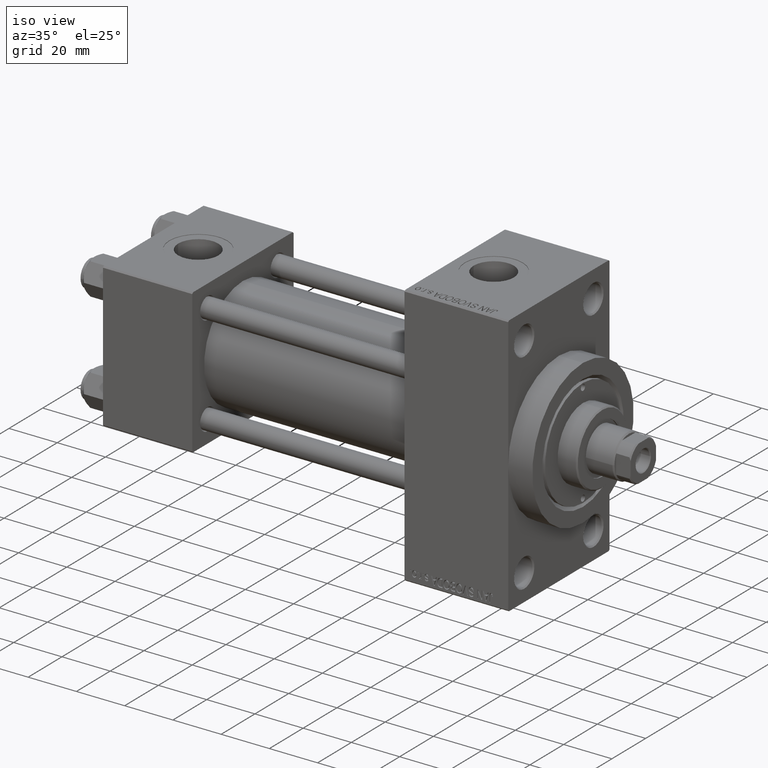
[diagram: clean part render]
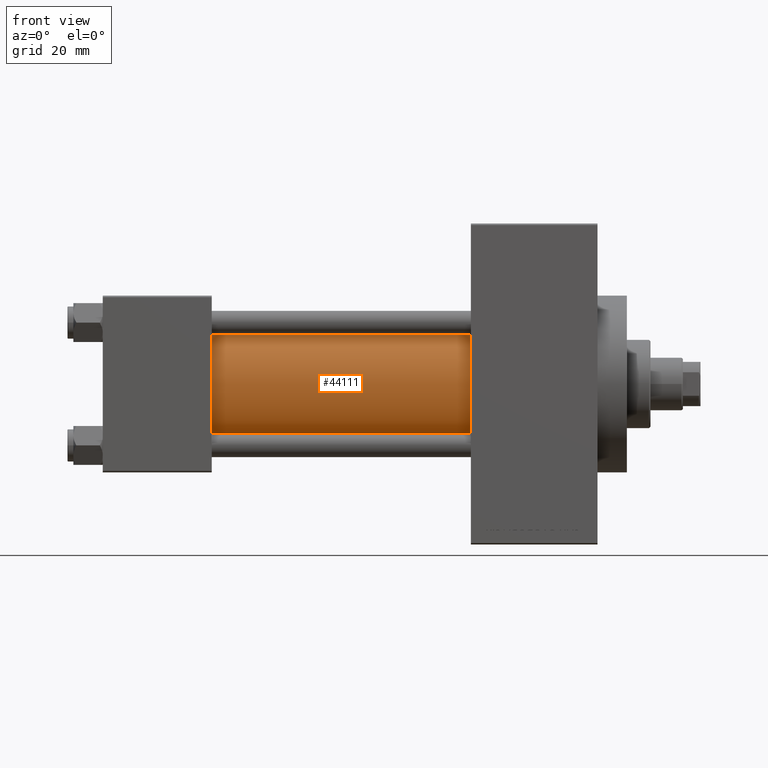
[diagram: tour spotlight — one face highlighted and labeled with its STEP entity id]
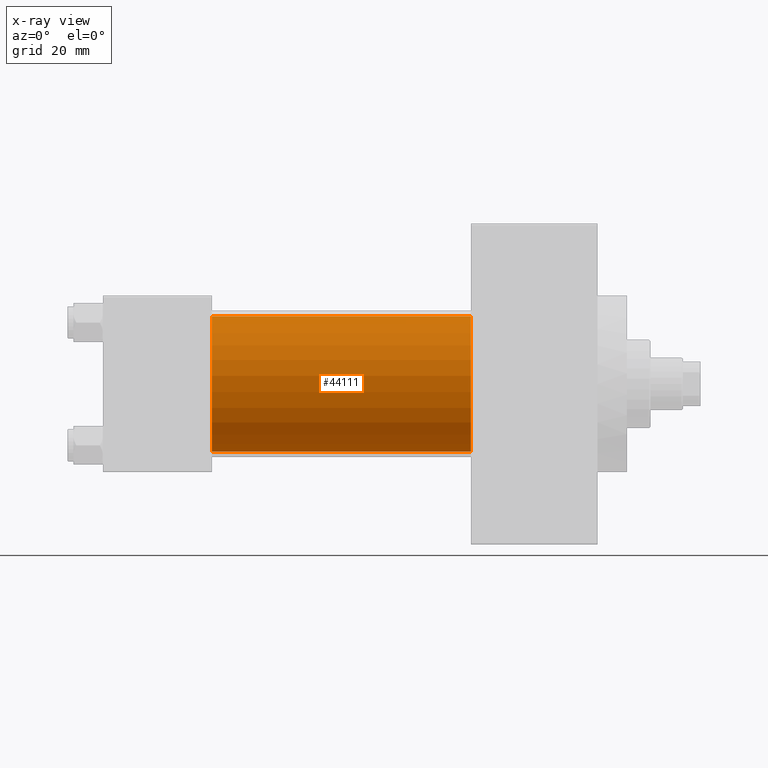
[diagram: x-ray of the same camera — body ghosted, this tour face saturated]
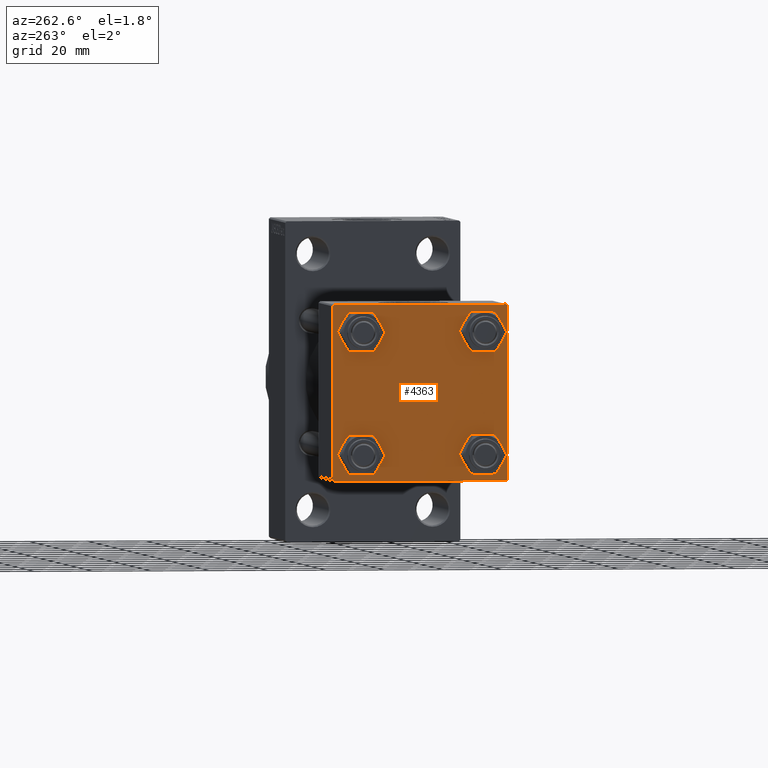
[diagram: tour spotlight — one face highlighted and labeled with its STEP entity id]
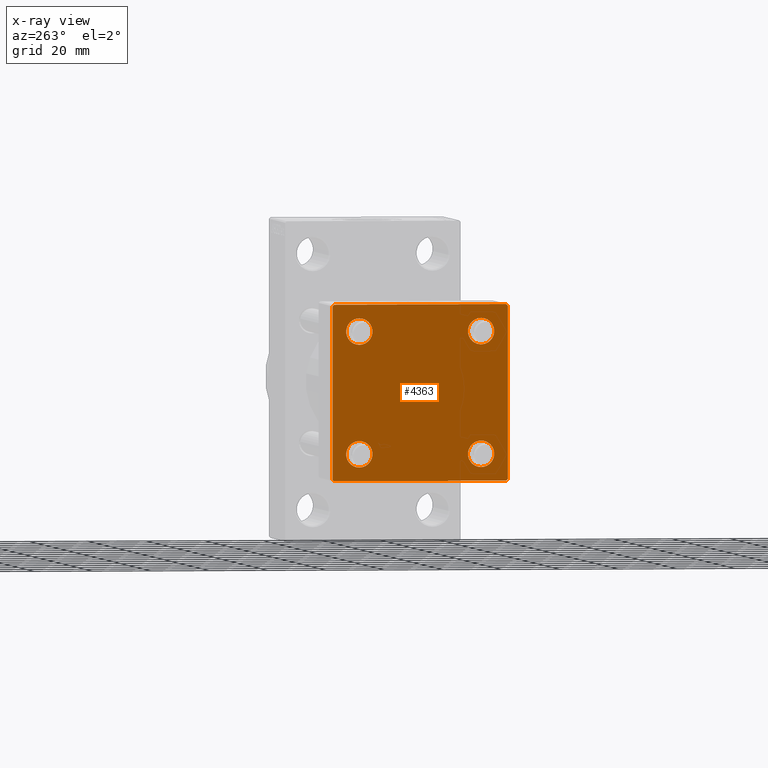
[diagram: x-ray of the same camera — body ghosted, this tour face saturated]
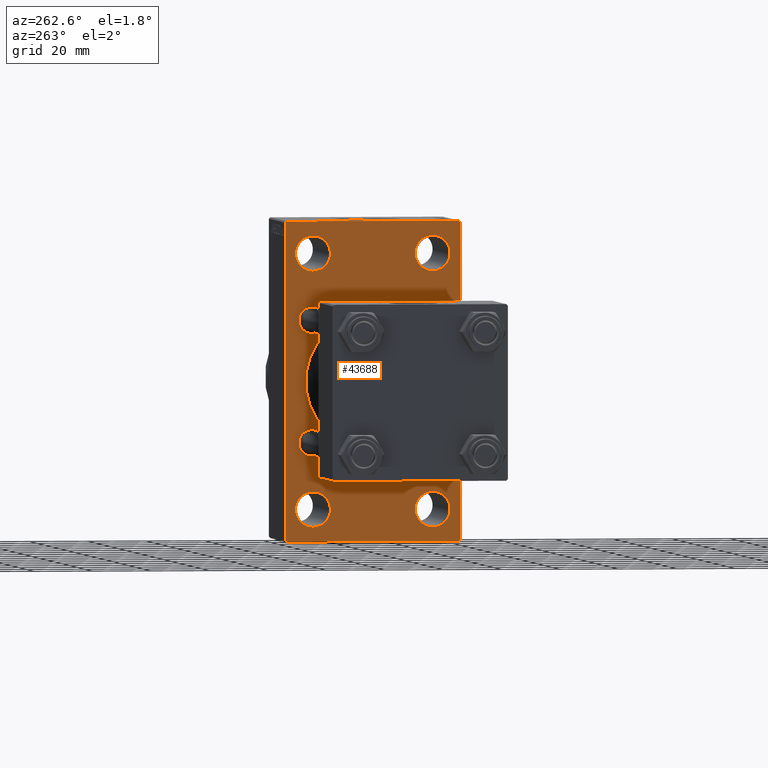
[diagram: tour spotlight — one face highlighted and labeled with its STEP entity id]
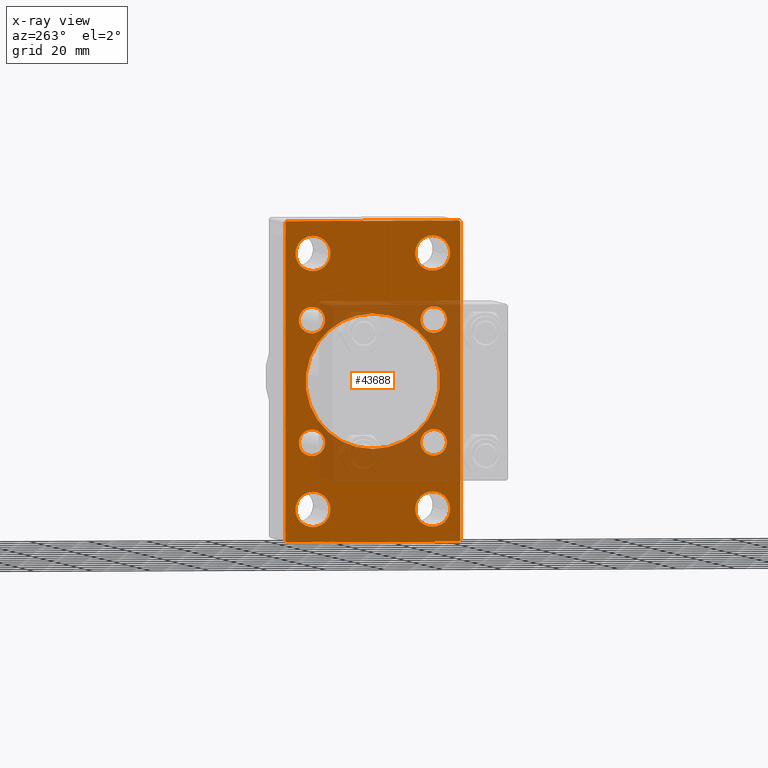
[diagram: x-ray of the same camera — body ghosted, this tour face saturated]
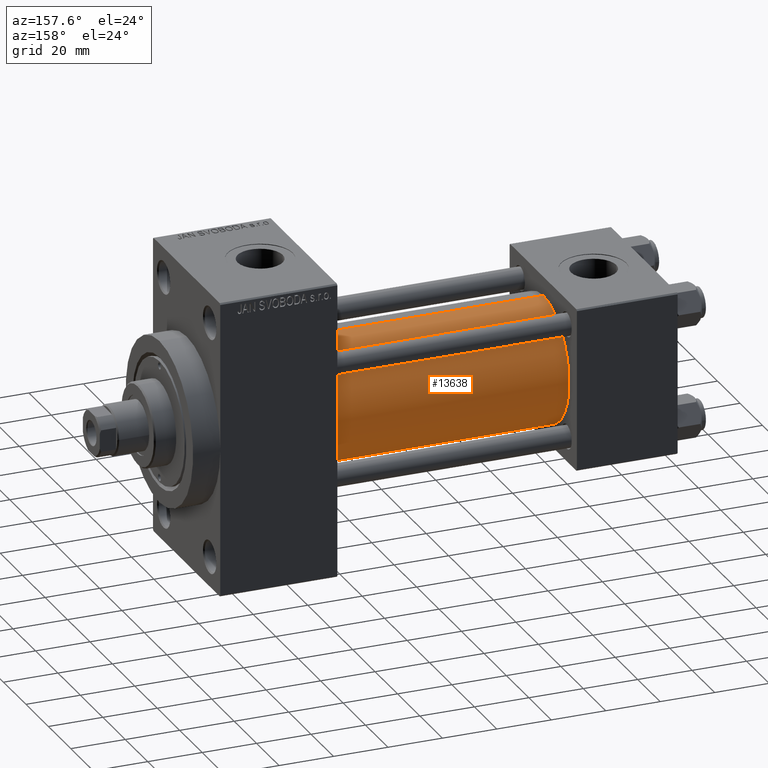
[diagram: tour spotlight — one face highlighted and labeled with its STEP entity id]
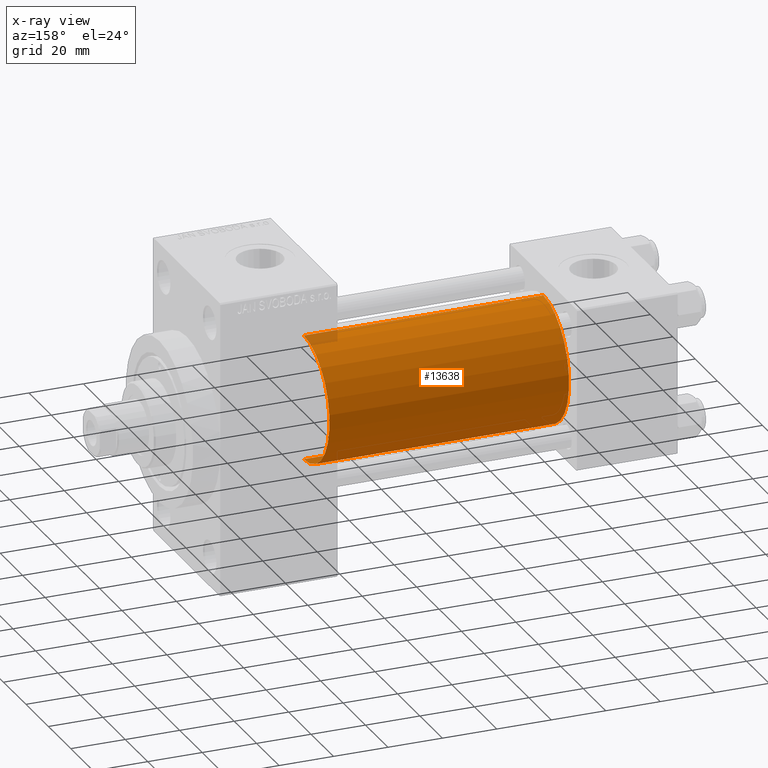
[diagram: x-ray of the same camera — body ghosted, this tour face saturated]
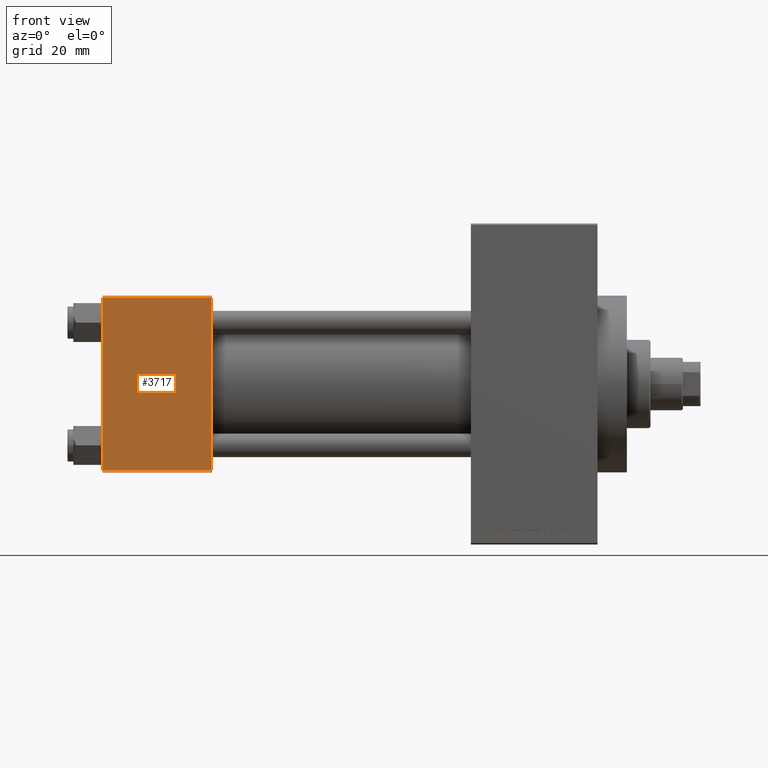
[diagram: tour spotlight — one face highlighted and labeled with its STEP entity id]
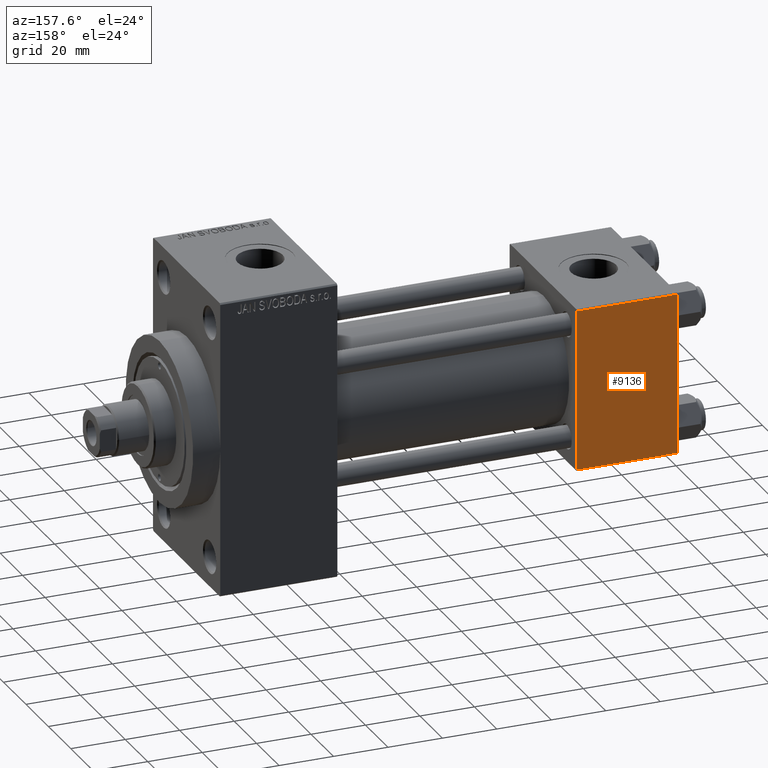
[diagram: tour spotlight — one face highlighted and labeled with its STEP entity id]
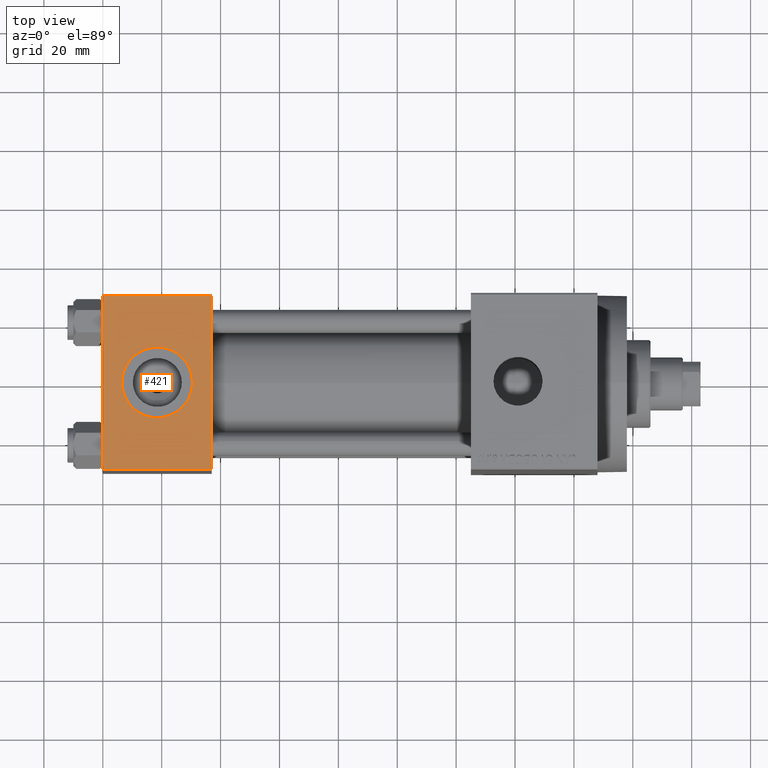
[diagram: tour spotlight — one face highlighted and labeled with its STEP entity id]
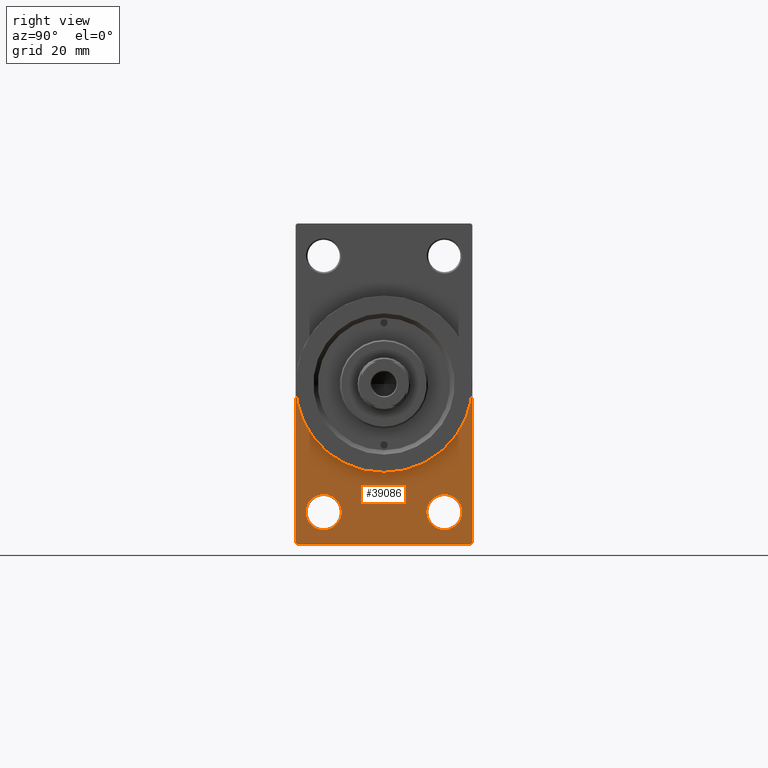
[diagram: tour spotlight — one face highlighted and labeled with its STEP entity id]
A machine part: a face-by-face anatomy tour. The part has 1112 B-rep faces; the first image is the clean iso view, then the 8 largest visible faces are spotlighted one at a time (largest first), each with its STEP entity span.

Face 1 — front view, entity #44111. An x-ray twin of the same camera follows (body ghosted, this face saturated) — the face is partly hidden behind the body. In plain terms, the highlighted cylindrical surface (partial cylindrical patch) has radius 23 mm, axis along (-1, -0, -0).
Definition (entity closure, byte-faithful):
#1170 = CARTESIAN_POINT ( 'NONE',  ( 37.00000000000000711, -2.602085213965210642E-15, 23.00000000000000000 ) ) ;
#1554 = ORIENTED_EDGE ( 'NONE', *, *, #14561, .T. ) ;
#1659 = CARTESIAN_POINT ( 'NONE',  ( 125.0000000000000000, -2.602085213965210642E-15, 0.000000000000000000 ) ) ;
#1843 = ORIENTED_EDGE ( 'NONE', *, *, #11908, .F. ) ;
#3394 = DIRECTION ( 'NONE',  ( -1.000000000000000000, -0.000000000000000000, -0.000000000000000000 ) ) ;
#3546 = AXIS2_PLACEMENT_3D ( 'NONE', #1659, #16992, #16277 ) ;
#3885 = CARTESIAN_POINT ( 'NONE',  ( 125.0000000000000000, -2.602085213965210642E-15, 23.00000000000000000 ) ) ;
#5732 = DIRECTION ( 'NONE',  ( 0.000000000000000000, 0.000000000000000000, 1.000000000000000000 ) ) ;
#7010 = FACE_OUTER_BOUND ( 'NONE', #47047, .T. ) ;
#7470 = CYLINDRICAL_SURFACE ( 'NONE', #8044, 23.00000000000000000 ) ;
#8044 = AXIS2_PLACEMENT_3D ( 'NONE', #32677, #14210, #40135 ) ;
#10346 = CARTESIAN_POINT ( 'NONE',  ( 125.0000000000000000, 2.146024240737016609E-16, -23.00000000000000000 ) ) ;
#11436 = VERTEX_POINT ( 'NONE', #15441 ) ;
#11908 = EDGE_CURVE ( 'NONE', #11436, #42377, #41092, .T. ) ;
#13854 = DIRECTION ( 'NONE',  ( 1.000000000000000000, -0.000000000000000000, 0.000000000000000000 ) ) ;
#14193 = CARTESIAN_POINT ( 'NONE',  ( 37.00000000000000711, 2.146024240737016609E-16, -23.00000000000000000 ) ) ;
#14210 = DIRECTION ( 'NONE',  ( -1.000000000000000000, -0.000000000000000000, -0.000000000000000000 ) ) ;
#14561 = EDGE_CURVE ( 'NONE', #43275, #41863, #44205, .T. ) ;
#14870 = LINE ( 'NONE', #10346, #38579 ) ;
#15441 = CARTESIAN_POINT ( 'NONE',  ( 125.0000000000000000, -2.602085213965210642E-15, 23.00000000000000000 ) ) ;
#16277 = DIRECTION ( 'NONE',  ( 0.000000000000000000, 0.000000000000000000, -1.000000000000000000 ) ) ;
#16992 = DIRECTION ( 'NONE',  ( 1.000000000000000000, 0.000000000000000000, 0.000000000000000000 ) ) ;
#18505 = DIRECTION ( 'NONE',  ( -1.000000000000000000, -0.000000000000000000, -0.000000000000000000 ) ) ;
#25330 = ORIENTED_EDGE ( 'NONE', *, *, #39605, .F. ) ;
#28031 = CARTESIAN_POINT ( 'NONE',  ( 37.00000000000000711, -2.602085213965210642E-15, 0.000000000000000000 ) ) ;
#32677 = CARTESIAN_POINT ( 'NONE',  ( 125.0000000000000000, -2.602085213965210642E-15, 0.000000000000000000 ) ) ;
#34486 = ORIENTED_EDGE ( 'NONE', *, *, #44209, .T. ) ;
#36559 = AXIS2_PLACEMENT_3D ( 'NONE', #28031, #13854, #5732 ) ;
#38579 = VECTOR ( 'NONE', #3394, 1000.000000000000000 ) ;
#39605 = EDGE_CURVE ( 'NONE', #42377, #41863, #14870, .T. ) ;
#40135 = DIRECTION ( 'NONE',  ( 0.000000000000000000, 0.000000000000000000, 1.000000000000000000 ) ) ;
#40601 = LINE ( 'NONE', #3885, #40990 ) ;
#40990 = VECTOR ( 'NONE', #18505, 1000.000000000000000 ) ;
#41092 = CIRCLE ( 'NONE', #3546, 23.00000000000000000 ) ;
#41863 = VERTEX_POINT ( 'NONE', #14193 ) ;
#42377 = VERTEX_POINT ( 'NONE', #42441 ) ;
#42441 = CARTESIAN_POINT ( 'NONE',  ( 125.0000000000000000, 2.146024240737016609E-16, -23.00000000000000000 ) ) ;
#43275 = VERTEX_POINT ( 'NONE', #1170 ) ;
#44111 = ADVANCED_FACE ( 'NONE', ( #7010 ), #7470, .T. ) ;
#44205 = CIRCLE ( 'NONE', #36559, 23.00000000000000000 ) ;
#44209 = EDGE_CURVE ( 'NONE', #11436, #43275, #40601, .T. ) ;
#47047 = EDGE_LOOP ( 'NONE', ( #25330, #1843, #34486, #1554 ) ) ;

Face 2 — auxiliary view, entity #4363. An x-ray twin of the same camera follows (body ghosted, this face saturated) — the face is partly hidden behind the body. In plain terms, the highlighted planar face has unit normal (-1, 0, 0).
Definition (entity closure, byte-faithful):
#66 = VECTOR ( 'NONE', #18318, 1000.000000000000000 ) ;
#426 = EDGE_CURVE ( 'NONE', #12379, #43851, #31641, .T. ) ;
#891 = FACE_BOUND ( 'NONE', #26825, .T. ) ;
#1550 = CARTESIAN_POINT ( 'NONE',  ( 0.000000000000000000, 20.84999999999999787, -16.34999999999998366 ) ) ;
#1989 = CARTESIAN_POINT ( 'NONE',  ( 0.000000000000000000, -30.00000000000000000, 29.49999999999999289 ) ) ;
#2442 = AXIS2_PLACEMENT_3D ( 'NONE', #22267, #36938, #44378 ) ;
#2809 = ORIENTED_EDGE ( 'NONE', *, *, #12884, .T. ) ;
#2903 = DIRECTION ( 'NONE',  ( 0.000000000000000000, 0.000000000000000000, 1.000000000000000000 ) ) ;
#3457 = CIRCLE ( 'NONE', #34907, 4.500000000000017764 ) ;
#4273 = CARTESIAN_POINT ( 'NONE',  ( 0.000000000000000000, -30.00000000000000000, -29.50000000000001776 ) ) ;
#4294 = ORIENTED_EDGE ( 'NONE', *, *, #43671, .T. ) ;
#4351 = ORIENTED_EDGE ( 'NONE', *, *, #40370, .T. ) ;
#4363 = ADVANCED_FACE ( 'NONE', ( #33756, #30633, #37606, #891, #41441 ), #41688, .T. ) ;
#4730 = CARTESIAN_POINT ( 'NONE',  ( 0.000000000000000000, -20.84999999999999076, -16.34999999999998721 ) ) ;
#5481 = DIRECTION ( 'NONE',  ( 1.000000000000000000, -0.000000000000000000, 0.000000000000000000 ) ) ;
#5856 = LINE ( 'NONE', #13270, #22525 ) ;
#5866 = CARTESIAN_POINT ( 'NONE',  ( 0.000000000000000000, -20.84999999999999076, -25.35000000000002274 ) ) ;
#6093 = VERTEX_POINT ( 'NONE', #40283 ) ;
#6120 = CARTESIAN_POINT ( 'NONE',  ( 0.000000000000000000, -29.49999999999998579, 29.99999999999999289 ) ) ;
#6510 = DIRECTION ( 'NONE',  ( 1.000000000000000000, -0.000000000000000000, 0.000000000000000000 ) ) ;
#6816 = EDGE_CURVE ( 'NONE', #19126, #27150, #30248, .T. ) ;
#7183 = VERTEX_POINT ( 'NONE', #4273 ) ;
#7248 = EDGE_LOOP ( 'NONE', ( #9634, #10619, #4351, #32402, #22454, #31161, #47279, #37866 ) ) ;
#7987 = EDGE_CURVE ( 'NONE', #8307, #7183, #5856, .T. ) ;
#8270 = LINE ( 'NONE', #19307, #25864 ) ;
#8307 = VERTEX_POINT ( 'NONE', #37960 ) ;
#8440 = CARTESIAN_POINT ( 'NONE',  ( 0.000000000000000000, 29.99999999999999289, 30.00000000000000000 ) ) ;
#8723 = VERTEX_POINT ( 'NONE', #25129 ) ;
#9027 = DIRECTION ( 'NONE',  ( -1.000000000000000000, 0.000000000000000000, -0.000000000000000000 ) ) ;
#9113 = DIRECTION ( 'NONE',  ( 1.000000000000000000, -0.000000000000000000, 0.000000000000000000 ) ) ;
#9634 = ORIENTED_EDGE ( 'NONE', *, *, #23498, .T. ) ;
#10199 = CARTESIAN_POINT ( 'NONE',  ( 0.000000000000000000, -20.84999999999999076, -20.85000000000000497 ) ) ;
#10317 = DIRECTION ( 'NONE',  ( -0.000000000000000000, 0.7071067811865474617, 0.7071067811865474617 ) ) ;
#10390 = ORIENTED_EDGE ( 'NONE', *, *, #35209, .T. ) ;
#10619 = ORIENTED_EDGE ( 'NONE', *, *, #6816, .T. ) ;
#11015 = DIRECTION ( 'NONE',  ( 0.000000000000000000, 0.000000000000000000, 1.000000000000000000 ) ) ;
#11337 = ORIENTED_EDGE ( 'NONE', *, *, #47235, .T. ) ;
#11499 = ORIENTED_EDGE ( 'NONE', *, *, #26181, .T. ) ;
#11726 = EDGE_LOOP ( 'NONE', ( #15335, #10390 ) ) ;
#12104 = DIRECTION ( 'NONE',  ( 0.000000000000000000, 0.000000000000000000, -1.000000000000000000 ) ) ;
#12178 = CARTESIAN_POINT ( 'NONE',  ( 0.000000000000000000, -20.84999999999999076, 20.85000000000000497 ) ) ;
#12379 = VERTEX_POINT ( 'NONE', #1550 ) ;
#12742 = AXIS2_PLACEMENT_3D ( 'NONE', #12178, #5481, #12903 ) ;
#12749 = CARTESIAN_POINT ( 'NONE',  ( 0.000000000000000000, 20.84999999999999787, 20.85000000000000142 ) ) ;
#12884 = EDGE_CURVE ( 'NONE', #33533, #13108, #28102, .T. ) ;
#12903 = DIRECTION ( 'NONE',  ( 0.000000000000000000, 0.000000000000000000, 1.000000000000000000 ) ) ;
#13108 = VERTEX_POINT ( 'NONE', #43495 ) ;
#13188 = DIRECTION ( 'NONE',  ( 0.000000000000000000, 0.000000000000000000, 1.000000000000000000 ) ) ;
#13270 = CARTESIAN_POINT ( 'NONE',  ( 0.000000000000000000, -29.75000000000001066, -29.75000000000001066 ) ) ;
#13273 = EDGE_LOOP ( 'NONE', ( #11337, #2809 ) ) ;
#13905 = LINE ( 'NONE', #43215, #22225 ) ;
#14170 = ORIENTED_EDGE ( 'NONE', *, *, #33019, .T. ) ;
#14258 = CARTESIAN_POINT ( 'NONE',  ( 0.000000000000000000, -30.00000000000000000, 29.99999999999999289 ) ) ;
#15335 = ORIENTED_EDGE ( 'NONE', *, *, #426, .T. ) ;
#15376 = AXIS2_PLACEMENT_3D ( 'NONE', #38894, #31438, #13188 ) ;
#16557 = CARTESIAN_POINT ( 'NONE',  ( 0.000000000000000000, -20.84999999999999076, -20.85000000000000497 ) ) ;
#17397 = DIRECTION ( 'NONE',  ( 1.000000000000000000, -0.000000000000000000, 0.000000000000000000 ) ) ;
#18212 = DIRECTION ( 'NONE',  ( 1.000000000000000000, -0.000000000000000000, 0.000000000000000000 ) ) ;
#18234 = VERTEX_POINT ( 'NONE', #18758 ) ;
#18318 = DIRECTION ( 'NONE',  ( 0.000000000000000000, 0.000000000000000000, -1.000000000000000000 ) ) ;
#18677 = DIRECTION ( 'NONE',  ( 0.000000000000000000, 0.7071067811865474617, -0.7071067811865474617 ) ) ;
#18758 = CARTESIAN_POINT ( 'NONE',  ( 0.000000000000000000, 29.99999999999999289, 29.50000000000000000 ) ) ;
#19126 = VERTEX_POINT ( 'NONE', #21732 ) ;
#19151 = LINE ( 'NONE', #22737, #22099 ) ;
#19307 = CARTESIAN_POINT ( 'NONE',  ( 0.000000000000000000, 29.99999999999999289, 30.00000000000000000 ) ) ;
#19496 = CARTESIAN_POINT ( 'NONE',  ( 0.000000000000000000, -20.84999999999999076, 16.34999999999998721 ) ) ;
#19721 = LINE ( 'NONE', #8440, #27670 ) ;
#20507 = LINE ( 'NONE', #26972, #24025 ) ;
#20915 = EDGE_CURVE ( 'NONE', #8723, #18234, #19151, .T. ) ;
#21571 = CARTESIAN_POINT ( 'NONE',  ( 0.000000000000000000, 20.84999999999999787, -20.85000000000000142 ) ) ;
#21732 = CARTESIAN_POINT ( 'NONE',  ( 0.000000000000000000, 29.99999999999999289, -29.50000000000000000 ) ) ;
#22099 = VECTOR ( 'NONE', #18677, 1000.000000000000114 ) ;
#22225 = VECTOR ( 'NONE', #10317, 1000.000000000000114 ) ;
#22267 = CARTESIAN_POINT ( 'NONE',  ( 0.000000000000000000, 20.84999999999999787, 20.85000000000000142 ) ) ;
#22342 = VERTEX_POINT ( 'NONE', #4730 ) ;
#22388 = AXIS2_PLACEMENT_3D ( 'NONE', #36017, #6510, #11015 ) ;
#22454 = ORIENTED_EDGE ( 'NONE', *, *, #29413, .F. ) ;
#22525 = VECTOR ( 'NONE', #38976, 1000.000000000000114 ) ;
#22737 = CARTESIAN_POINT ( 'NONE',  ( 0.000000000000000000, 29.74999999999999645, 29.74999999999999645 ) ) ;
#23035 = CIRCLE ( 'NONE', #15376, 4.500000000000017764 ) ;
#23078 = CIRCLE ( 'NONE', #2442, 4.500000000000017764 ) ;
#23498 = EDGE_CURVE ( 'NONE', #18234, #19126, #8270, .T. ) ;
#23656 = CARTESIAN_POINT ( 'NONE',  ( 0.000000000000000000, 0.000000000000000000, 0.000000000000000000 ) ) ;
#24024 = DIRECTION ( 'NONE',  ( 1.000000000000000000, -0.000000000000000000, 0.000000000000000000 ) ) ;
#24025 = VECTOR ( 'NONE', #39706, 1000.000000000000000 ) ;
#25129 = CARTESIAN_POINT ( 'NONE',  ( 0.000000000000000000, 29.49999999999999289, 30.00000000000000000 ) ) ;
#25864 = VECTOR ( 'NONE', #12104, 1000.000000000000000 ) ;
#26181 = EDGE_CURVE ( 'NONE', #38561, #6093, #42125, .T. ) ;
#26386 = CARTESIAN_POINT ( 'NONE',  ( 0.000000000000000000, 29.74999999999957723, -29.75000000000040501 ) ) ;
#26673 = VERTEX_POINT ( 'NONE', #6120 ) ;
#26825 = EDGE_LOOP ( 'NONE', ( #11499, #36975 ) ) ;
#26867 = CARTESIAN_POINT ( 'NONE',  ( 0.000000000000000000, 20.84999999999999787, 25.35000000000001918 ) ) ;
#26972 = CARTESIAN_POINT ( 'NONE',  ( 0.000000000000000000, 29.99999999999999289, -30.00000000000000000 ) ) ;
#27030 = CIRCLE ( 'NONE', #39341, 4.500000000000017764 ) ;
#27087 = VERTEX_POINT ( 'NONE', #1989 ) ;
#27150 = VERTEX_POINT ( 'NONE', #28356 ) ;
#27390 = DIRECTION ( 'NONE',  ( 0.000000000000000000, 0.000000000000000000, 1.000000000000000000 ) ) ;
#27670 = VECTOR ( 'NONE', #37735, 1000.000000000000000 ) ;
#28102 = CIRCLE ( 'NONE', #12742, 4.500000000000017764 ) ;
#28208 = DIRECTION ( 'NONE',  ( 0.000000000000000000, 0.000000000000000000, 1.000000000000000000 ) ) ;
#28356 = CARTESIAN_POINT ( 'NONE',  ( 0.000000000000000000, 29.49999999999997868, -30.00000000000000000 ) ) ;
#29363 = LINE ( 'NONE', #14258, #66 ) ;
#29413 = EDGE_CURVE ( 'NONE', #27087, #7183, #29363, .T. ) ;
#30147 = EDGE_CURVE ( 'NONE', #27087, #26673, #13905, .T. ) ;
#30248 = LINE ( 'NONE', #26386, #36329 ) ;
#30558 = CARTESIAN_POINT ( 'NONE',  ( 0.000000000000000000, 20.84999999999999787, -25.35000000000001918 ) ) ;
#30633 = FACE_BOUND ( 'NONE', #36902, .T. ) ;
#30708 = EDGE_CURVE ( 'NONE', #8723, #26673, #19721, .T. ) ;
#31161 = ORIENTED_EDGE ( 'NONE', *, *, #30147, .T. ) ;
#31438 = DIRECTION ( 'NONE',  ( 1.000000000000000000, -0.000000000000000000, 0.000000000000000000 ) ) ;
#31641 = CIRCLE ( 'NONE', #22388, 4.500000000000017764 ) ;
#32402 = ORIENTED_EDGE ( 'NONE', *, *, #7987, .T. ) ;
#32902 = AXIS2_PLACEMENT_3D ( 'NONE', #12749, #24024, #27390 ) ;
#33019 = EDGE_CURVE ( 'NONE', #46546, #22342, #39273, .T. ) ;
#33533 = VERTEX_POINT ( 'NONE', #19496 ) ;
#33756 = FACE_BOUND ( 'NONE', #13273, .T. ) ;
#34060 = AXIS2_PLACEMENT_3D ( 'NONE', #23656, #9027, #45277 ) ;
#34907 = AXIS2_PLACEMENT_3D ( 'NONE', #10199, #17397, #28208 ) ;
#35209 = EDGE_CURVE ( 'NONE', #43851, #12379, #27030, .T. ) ;
#35324 = EDGE_CURVE ( 'NONE', #6093, #38561, #23078, .T. ) ;
#36017 = CARTESIAN_POINT ( 'NONE',  ( 0.000000000000000000, 20.84999999999999787, -20.85000000000000142 ) ) ;
#36329 = VECTOR ( 'NONE', #44652, 999.9999999999998863 ) ;
#36902 = EDGE_LOOP ( 'NONE', ( #4294, #14170 ) ) ;
#36938 = DIRECTION ( 'NONE',  ( 1.000000000000000000, -0.000000000000000000, 0.000000000000000000 ) ) ;
#36975 = ORIENTED_EDGE ( 'NONE', *, *, #35324, .T. ) ;
#37606 = FACE_BOUND ( 'NONE', #11726, .T. ) ;
#37735 = DIRECTION ( 'NONE',  ( 0.000000000000000000, -1.000000000000000000, -1.156482317317871725E-16 ) ) ;
#37866 = ORIENTED_EDGE ( 'NONE', *, *, #20915, .T. ) ;
#37960 = CARTESIAN_POINT ( 'NONE',  ( 0.000000000000000000, -29.50000000000000000, -30.00000000000000711 ) ) ;
#38561 = VERTEX_POINT ( 'NONE', #26867 ) ;
#38894 = CARTESIAN_POINT ( 'NONE',  ( 0.000000000000000000, -20.84999999999999076, 20.85000000000000497 ) ) ;
#38976 = DIRECTION ( 'NONE',  ( 0.000000000000000000, -0.7071067811865474617, 0.7071067811865474617 ) ) ;
#39273 = CIRCLE ( 'NONE', #40003, 4.500000000000017764 ) ;
#39341 = AXIS2_PLACEMENT_3D ( 'NONE', #21571, #18212, #2903 ) ;
#39706 = DIRECTION ( 'NONE',  ( 0.000000000000000000, -1.000000000000000000, -1.156482317317871725E-16 ) ) ;
#40003 = AXIS2_PLACEMENT_3D ( 'NONE', #16557, #9113, #45850 ) ;
#40283 = CARTESIAN_POINT ( 'NONE',  ( 0.000000000000000000, 20.84999999999999787, 16.34999999999998366 ) ) ;
#40370 = EDGE_CURVE ( 'NONE', #27150, #8307, #20507, .T. ) ;
#41441 = FACE_OUTER_BOUND ( 'NONE', #7248, .T. ) ;
#41688 = PLANE ( 'NONE',  #34060 ) ;
#42125 = CIRCLE ( 'NONE', #32902, 4.500000000000017764 ) ;
#43215 = CARTESIAN_POINT ( 'NONE',  ( -0.000000000000000000, -29.74999999999999645, 29.74999999999999645 ) ) ;
#43495 = CARTESIAN_POINT ( 'NONE',  ( 0.000000000000000000, -20.84999999999999076, 25.35000000000002274 ) ) ;
#43671 = EDGE_CURVE ( 'NONE', #22342, #46546, #3457, .T. ) ;
#43851 = VERTEX_POINT ( 'NONE', #30558 ) ;
#44378 = DIRECTION ( 'NONE',  ( 0.000000000000000000, 0.000000000000000000, 1.000000000000000000 ) ) ;
#44652 = DIRECTION ( 'NONE',  ( -0.000000000000000000, -0.7071067811865574537, -0.7071067811865376918 ) ) ;
#45277 = DIRECTION ( 'NONE',  ( -0.000000000000000000, 0.000000000000000000, 1.000000000000000000 ) ) ;
#45850 = DIRECTION ( 'NONE',  ( 0.000000000000000000, 0.000000000000000000, 1.000000000000000000 ) ) ;
#46546 = VERTEX_POINT ( 'NONE', #5866 ) ;
#47235 = EDGE_CURVE ( 'NONE', #13108, #33533, #23035, .T. ) ;
#47279 = ORIENTED_EDGE ( 'NONE', *, *, #30708, .F. ) ;

Face 3 — auxiliary view, entity #43688. An x-ray twin of the same camera follows (body ghosted, this face saturated) — the face is partly hidden behind the body. In plain terms, the highlighted planar face has unit normal (-1, 0, 0).
Definition (entity closure, byte-faithful):
#150 = DIRECTION ( 'NONE',  ( 0.000000000000000000, 0.000000000000000000, -1.000000000000000000 ) ) ;
#555 = CARTESIAN_POINT ( 'NONE',  ( 125.0000000000000000, -30.00000000000000000, 54.50000000000000000 ) ) ;
#631 = CARTESIAN_POINT ( 'NONE',  ( 125.0000000000000000, -42.00000000000008527, 41.99999999999979394 ) ) ;
#965 = LINE ( 'NONE', #15583, #37639 ) ;
#1077 = CIRCLE ( 'NONE', #39401, 5.999999999999977796 ) ;
#1312 = VERTEX_POINT ( 'NONE', #9329 ) ;
#1420 = DIRECTION ( 'NONE',  ( 0.000000000000000000, 0.000000000000000000, 1.000000000000000000 ) ) ;
#1468 = CARTESIAN_POINT ( 'NONE',  ( 125.0000000000000000, 20.50000000000000000, 49.49999999999997158 ) ) ;
#1659 = CARTESIAN_POINT ( 'NONE',  ( 125.0000000000000000, -2.602085213965210642E-15, 0.000000000000000000 ) ) ;
#1801 = EDGE_LOOP ( 'NONE', ( #6730, #9656 ) ) ;
#1875 = DIRECTION ( 'NONE',  ( 1.000000000000000000, -0.000000000000000000, 0.000000000000000000 ) ) ;
#1954 = AXIS2_PLACEMENT_3D ( 'NONE', #42731, #39124, #20866 ) ;
#2313 = FACE_BOUND ( 'NONE', #17533, .T. ) ;
#2508 = EDGE_CURVE ( 'NONE', #21251, #39912, #8522, .T. ) ;
#2687 = EDGE_CURVE ( 'NONE', #34489, #13159, #44717, .T. ) ;
#3019 = FACE_BOUND ( 'NONE', #29223, .T. ) ;
#3244 = FACE_BOUND ( 'NONE', #16330, .T. ) ;
#3301 = EDGE_CURVE ( 'NONE', #20846, #40132, #1077, .T. ) ;
#3546 = AXIS2_PLACEMENT_3D ( 'NONE', #1659, #16992, #16277 ) ;
#3775 = ORIENTED_EDGE ( 'NONE', *, *, #10757, .T. ) ;
#3997 = VERTEX_POINT ( 'NONE', #40317 ) ;
#4223 = AXIS2_PLACEMENT_3D ( 'NONE', #31809, #6835, #46456 ) ;
#4614 = DIRECTION ( 'NONE',  ( 0.000000000000000000, 0.000000000000000000, -1.000000000000000000 ) ) ;
#4670 = DIRECTION ( 'NONE',  ( 1.000000000000000000, -0.000000000000000000, 0.000000000000000000 ) ) ;
#4780 = VERTEX_POINT ( 'NONE', #24739 ) ;
#4830 = ORIENTED_EDGE ( 'NONE', *, *, #29176, .T. ) ;
#5080 = CIRCLE ( 'NONE', #32647, 4.500000000000007105 ) ;
#5086 = DIRECTION ( 'NONE',  ( 1.000000000000000000, -0.000000000000000000, 0.000000000000000000 ) ) ;
#5145 = CARTESIAN_POINT ( 'NONE',  ( 125.0000000000000000, 29.99999999999999645, 54.49999999999999289 ) ) ;
#5200 = CIRCLE ( 'NONE', #21297, 5.999999999999977796 ) ;
#5622 = CARTESIAN_POINT ( 'NONE',  ( 125.0000000000000000, 20.84999999999999787, 20.85000000000000142 ) ) ;
#5876 = EDGE_CURVE ( 'NONE', #4780, #15926, #12609, .T. ) ;
#6177 = AXIS2_PLACEMENT_3D ( 'NONE', #34734, #1875, #16496 ) ;
#6238 = ORIENTED_EDGE ( 'NONE', *, *, #39716, .T. ) ;
#6265 = ORIENTED_EDGE ( 'NONE', *, *, #12448, .T. ) ;
#6628 = ORIENTED_EDGE ( 'NONE', *, *, #3301, .T. ) ;
#6697 = CIRCLE ( 'NONE', #9775, 5.999999999999977796 ) ;
#6701 = VERTEX_POINT ( 'NONE', #42619 ) ;
#6730 = ORIENTED_EDGE ( 'NONE', *, *, #11908, .T. ) ;
#6835 = DIRECTION ( 'NONE',  ( -1.000000000000000000, 0.000000000000000000, -0.000000000000000000 ) ) ;
#6981 = EDGE_CURVE ( 'NONE', #13087, #3997, #41789, .T. ) ;
#7163 = VECTOR ( 'NONE', #14263, 1000.000000000000000 ) ;
#7554 = DIRECTION ( 'NONE',  ( 0.000000000000000000, 0.000000000000000000, 1.000000000000000000 ) ) ;
#7713 = CARTESIAN_POINT ( 'NONE',  ( 125.0000000000000000, -20.84999999999999076, 20.85000000000000497 ) ) ;
#7958 = ORIENTED_EDGE ( 'NONE', *, *, #26558, .F. ) ;
#8522 = LINE ( 'NONE', #34455, #7163 ) ;
#9132 = EDGE_LOOP ( 'NONE', ( #33351, #17291 ) ) ;
#9329 = CARTESIAN_POINT ( 'NONE',  ( 125.0000000000000000, 29.49999999999999645, -54.49999999999999289 ) ) ;
#9387 = ORIENTED_EDGE ( 'NONE', *, *, #6981, .T. ) ;
#9656 = ORIENTED_EDGE ( 'NONE', *, *, #34626, .T. ) ;
#9775 = AXIS2_PLACEMENT_3D ( 'NONE', #42107, #13276, #34646 ) ;
#10352 = EDGE_CURVE ( 'NONE', #1312, #42830, #13848, .T. ) ;
#10449 = AXIS2_PLACEMENT_3D ( 'NONE', #34842, #5086, #34597 ) ;
#10676 = ORIENTED_EDGE ( 'NONE', *, *, #18194, .T. ) ;
#10751 = ORIENTED_EDGE ( 'NONE', *, *, #10352, .T. ) ;
#10757 = EDGE_CURVE ( 'NONE', #21497, #28112, #18771, .T. ) ;
#11179 = DIRECTION ( 'NONE',  ( 1.000000000000000000, -0.000000000000000000, 0.000000000000000000 ) ) ;
#11436 = VERTEX_POINT ( 'NONE', #15441 ) ;
#11535 = DIRECTION ( 'NONE',  ( 0.000000000000000000, 0.000000000000000000, 1.000000000000000000 ) ) ;
#11562 = LINE ( 'NONE', #555, #36789 ) ;
#11564 = VERTEX_POINT ( 'NONE', #13035 ) ;
#11678 = CIRCLE ( 'NONE', #12477, 23.00000000000000000 ) ;
#11908 = EDGE_CURVE ( 'NONE', #11436, #42377, #41092, .T. ) ;
#12021 = DIRECTION ( 'NONE',  ( 0.000000000000000000, 0.000000000000000000, 1.000000000000000000 ) ) ;
#12448 = EDGE_CURVE ( 'NONE', #11564, #6701, #5080, .T. ) ;
#12477 = AXIS2_PLACEMENT_3D ( 'NONE', #33727, #12777, #150 ) ;
#12564 = CARTESIAN_POINT ( 'NONE',  ( 125.0000000000000000, -20.84999999999999076, -20.85000000000000497 ) ) ;
#12609 = CIRCLE ( 'NONE', #15686, 4.500000000000007105 ) ;
#12729 = EDGE_CURVE ( 'NONE', #28112, #21497, #18112, .T. ) ;
#12777 = DIRECTION ( 'NONE',  ( 1.000000000000000000, 0.000000000000000000, 0.000000000000000000 ) ) ;
#12795 = DIRECTION ( 'NONE',  ( 1.000000000000000000, -0.000000000000000000, 0.000000000000000000 ) ) ;
#12918 = CARTESIAN_POINT ( 'NONE',  ( 125.0000000000000000, -20.84999999999999076, -20.85000000000000497 ) ) ;
#13035 = CARTESIAN_POINT ( 'NONE',  ( 125.0000000000000000, -20.84999999999999076, -16.34999999999999787 ) ) ;
#13087 = VERTEX_POINT ( 'NONE', #39894 ) ;
#13159 = VERTEX_POINT ( 'NONE', #1468 ) ;
#13276 = DIRECTION ( 'NONE',  ( 1.000000000000000000, -0.000000000000000000, 0.000000000000000000 ) ) ;
#13727 = VECTOR ( 'NONE', #30346, 1000.000000000000000 ) ;
#13848 = LINE ( 'NONE', #43159, #41019 ) ;
#14263 = DIRECTION ( 'NONE',  ( 0.000000000000000000, 0.000000000000000000, -1.000000000000000000 ) ) ;
#14972 = EDGE_CURVE ( 'NONE', #13159, #34489, #6697, .T. ) ;
#14997 = DIRECTION ( 'NONE',  ( 0.000000000000000000, 0.000000000000000000, 1.000000000000000000 ) ) ;
#15323 = VECTOR ( 'NONE', #29713, 1000.000000000000000 ) ;
#15345 = CARTESIAN_POINT ( 'NONE',  ( 125.0000000000000000, -30.00000000000000000, 53.99999999999997158 ) ) ;
#15388 = DIRECTION ( 'NONE',  ( 1.000000000000000000, -0.000000000000000000, 0.000000000000000000 ) ) ;
#15441 = CARTESIAN_POINT ( 'NONE',  ( 125.0000000000000000, -2.602085213965210642E-15, 23.00000000000000000 ) ) ;
#15558 = AXIS2_PLACEMENT_3D ( 'NONE', #43472, #26377, #30238 ) ;
#15583 = CARTESIAN_POINT ( 'NONE',  ( 125.0000000000000000, -42.00000000000051159, -41.99999999999905498 ) ) ;
#15587 = DIRECTION ( 'NONE',  ( 0.000000000000000000, 0.000000000000000000, 1.000000000000000000 ) ) ;
#15592 = EDGE_CURVE ( 'NONE', #6701, #11564, #42755, .T. ) ;
#15686 = AXIS2_PLACEMENT_3D ( 'NONE', #16064, #30712, #15587 ) ;
#15689 = VECTOR ( 'NONE', #40470, 1000.000000000000114 ) ;
#15704 = CARTESIAN_POINT ( 'NONE',  ( 125.0000000000000000, -20.50000000000000000, -43.50000000000000000 ) ) ;
#15926 = VERTEX_POINT ( 'NONE', #40647 ) ;
#15932 = LINE ( 'NONE', #41152, #22909 ) ;
#16064 = CARTESIAN_POINT ( 'NONE',  ( 125.0000000000000000, -20.84999999999999076, 20.85000000000000497 ) ) ;
#16277 = DIRECTION ( 'NONE',  ( 0.000000000000000000, 0.000000000000000000, -1.000000000000000000 ) ) ;
#16330 = EDGE_LOOP ( 'NONE', ( #16420, #32171 ) ) ;
#16420 = ORIENTED_EDGE ( 'NONE', *, *, #14972, .T. ) ;
#16496 = DIRECTION ( 'NONE',  ( 0.000000000000000000, 0.000000000000000000, 1.000000000000000000 ) ) ;
#16532 = DIRECTION ( 'NONE',  ( 1.000000000000000000, -0.000000000000000000, 0.000000000000000000 ) ) ;
#16652 = AXIS2_PLACEMENT_3D ( 'NONE', #7713, #15388, #12021 ) ;
#16700 = EDGE_LOOP ( 'NONE', ( #3775, #29978 ) ) ;
#16919 = FACE_BOUND ( 'NONE', #44452, .T. ) ;
#16992 = DIRECTION ( 'NONE',  ( 1.000000000000000000, 0.000000000000000000, 0.000000000000000000 ) ) ;
#17058 = ORIENTED_EDGE ( 'NONE', *, *, #27746, .F. ) ;
#17291 = ORIENTED_EDGE ( 'NONE', *, *, #28161, .T. ) ;
#17309 = VERTEX_POINT ( 'NONE', #23524 ) ;
#17533 = EDGE_LOOP ( 'NONE', ( #20135, #19411 ) ) ;
#17627 = FACE_OUTER_BOUND ( 'NONE', #25066, .T. ) ;
#17982 = EDGE_CURVE ( 'NONE', #17309, #18137, #40387, .T. ) ;
#18090 = CARTESIAN_POINT ( 'NONE',  ( 125.0000000000000000, 20.84999999999999787, -16.34999999999999432 ) ) ;
#18112 = CIRCLE ( 'NONE', #10449, 4.500000000000007105 ) ;
#18137 = VERTEX_POINT ( 'NONE', #35848 ) ;
#18194 = EDGE_CURVE ( 'NONE', #15926, #4780, #20490, .T. ) ;
#18257 = CARTESIAN_POINT ( 'NONE',  ( 125.0000000000000000, 20.50000000000000000, -49.49999999999997158 ) ) ;
#18609 = LINE ( 'NONE', #631, #15689 ) ;
#18771 = CIRCLE ( 'NONE', #22623, 4.500000000000007105 ) ;
#18869 = ORIENTED_EDGE ( 'NONE', *, *, #5876, .T. ) ;
#19411 = ORIENTED_EDGE ( 'NONE', *, *, #21319, .T. ) ;
#19639 = CARTESIAN_POINT ( 'NONE',  ( 125.0000000000000000, -20.50000000000000000, -43.50000000000000000 ) ) ;
#19860 = CARTESIAN_POINT ( 'NONE',  ( 125.0000000000000000, 20.50000000000000000, 37.50000000000002132 ) ) ;
#19994 = CARTESIAN_POINT ( 'NONE',  ( 125.0000000000000000, 20.50000000000000000, 43.50000000000000000 ) ) ;
#20135 = ORIENTED_EDGE ( 'NONE', *, *, #17982, .T. ) ;
#20337 = CARTESIAN_POINT ( 'NONE',  ( 125.0000000000000000, 20.84999999999999787, -25.35000000000000853 ) ) ;
#20391 = ORIENTED_EDGE ( 'NONE', *, *, #26605, .T. ) ;
#20490 = CIRCLE ( 'NONE', #16652, 4.500000000000007105 ) ;
#20846 = VERTEX_POINT ( 'NONE', #24059 ) ;
#20866 = DIRECTION ( 'NONE',  ( 0.000000000000000000, 0.000000000000000000, 1.000000000000000000 ) ) ;
#21007 = VERTEX_POINT ( 'NONE', #40772 ) ;
#21234 = FACE_BOUND ( 'NONE', #1801, .T. ) ;
#21251 = VERTEX_POINT ( 'NONE', #44544 ) ;
#21287 = DIRECTION ( 'NONE',  ( 0.000000000000000000, -1.000000000000000000, -1.156482317317871478E-16 ) ) ;
#21297 = AXIS2_PLACEMENT_3D ( 'NONE', #33242, #26736, #14997 ) ;
#21319 = EDGE_CURVE ( 'NONE', #18137, #17309, #35163, .T. ) ;
#21337 = AXIS2_PLACEMENT_3D ( 'NONE', #29425, #11179, #40474 ) ;
#21497 = VERTEX_POINT ( 'NONE', #18090 ) ;
#21717 = AXIS2_PLACEMENT_3D ( 'NONE', #15704, #4670, #7554 ) ;
#22043 = VERTEX_POINT ( 'NONE', #15345 ) ;
#22329 = CARTESIAN_POINT ( 'NONE',  ( 125.0000000000000000, 20.84999999999999787, -20.85000000000000142 ) ) ;
#22495 = LINE ( 'NONE', #44133, #15323 ) ;
#22623 = AXIS2_PLACEMENT_3D ( 'NONE', #22329, #37006, #11535 ) ;
#22909 = VECTOR ( 'NONE', #23369, 1000.000000000000114 ) ;
#23023 = CARTESIAN_POINT ( 'NONE',  ( 125.0000000000000000, 20.50000000000000000, -37.50000000000002132 ) ) ;
#23369 = DIRECTION ( 'NONE',  ( -0.000000000000000000, -0.7071067811865474617, -0.7071067811865474617 ) ) ;
#23524 = CARTESIAN_POINT ( 'NONE',  ( 125.0000000000000000, 20.84999999999999787, 25.35000000000000853 ) ) ;
#23541 = EDGE_CURVE ( 'NONE', #33883, #24148, #5200, .T. ) ;
#24021 = AXIS2_PLACEMENT_3D ( 'NONE', #19994, #34638, #42583 ) ;
#24059 = CARTESIAN_POINT ( 'NONE',  ( 125.0000000000000000, -20.50000000000000000, -49.49999999999997158 ) ) ;
#24119 = FACE_BOUND ( 'NONE', #38260, .T. ) ;
#24148 = VERTEX_POINT ( 'NONE', #18257 ) ;
#24739 = CARTESIAN_POINT ( 'NONE',  ( 125.0000000000000000, -20.84999999999999076, 25.35000000000001208 ) ) ;
#25066 = EDGE_LOOP ( 'NONE', ( #10751, #42278, #17058, #30026, #7958, #4830, #25610, #20391 ) ) ;
#25281 = CARTESIAN_POINT ( 'NONE',  ( 125.0000000000000000, -29.49999999999997513, 54.50000000000000000 ) ) ;
#25610 = ORIENTED_EDGE ( 'NONE', *, *, #2508, .T. ) ;
#26008 = ORIENTED_EDGE ( 'NONE', *, *, #15592, .T. ) ;
#26377 = DIRECTION ( 'NONE',  ( 1.000000000000000000, -0.000000000000000000, 0.000000000000000000 ) ) ;
#26558 = EDGE_CURVE ( 'NONE', #21007, #29371, #45479, .T. ) ;
#26605 = EDGE_CURVE ( 'NONE', #39912, #1312, #15932, .T. ) ;
#26736 = DIRECTION ( 'NONE',  ( 1.000000000000000000, -0.000000000000000000, 0.000000000000000000 ) ) ;
#27077 = EDGE_LOOP ( 'NONE', ( #6265, #26008 ) ) ;
#27195 = DIRECTION ( 'NONE',  ( 0.000000000000000000, 0.000000000000000000, 1.000000000000000000 ) ) ;
#27564 = DIRECTION ( 'NONE',  ( 0.000000000000000000, 0.000000000000000000, 1.000000000000000000 ) ) ;
#27746 = EDGE_CURVE ( 'NONE', #22043, #39412, #11562, .T. ) ;
#28112 = VERTEX_POINT ( 'NONE', #20337 ) ;
#28161 = EDGE_CURVE ( 'NONE', #24148, #33883, #30681, .T. ) ;
#28910 = AXIS2_PLACEMENT_3D ( 'NONE', #12918, #16532, #27564 ) ;
#29176 = EDGE_CURVE ( 'NONE', #21007, #21251, #22495, .T. ) ;
#29223 = EDGE_LOOP ( 'NONE', ( #9387, #6238 ) ) ;
#29371 = VERTEX_POINT ( 'NONE', #25281 ) ;
#29425 = CARTESIAN_POINT ( 'NONE',  ( 125.0000000000000000, 20.84999999999999787, 20.85000000000000142 ) ) ;
#29713 = DIRECTION ( 'NONE',  ( 0.000000000000000000, 0.7071067811865279218, -0.7071067811865671127 ) ) ;
#29978 = ORIENTED_EDGE ( 'NONE', *, *, #12729, .T. ) ;
#30026 = ORIENTED_EDGE ( 'NONE', *, *, #43451, .T. ) ;
#30238 = DIRECTION ( 'NONE',  ( 0.000000000000000000, 0.000000000000000000, 1.000000000000000000 ) ) ;
#30239 = DIRECTION ( 'NONE',  ( 0.000000000000000000, -0.7071067811865352493, 0.7071067811865597852 ) ) ;
#30346 = DIRECTION ( 'NONE',  ( 0.000000000000000000, -1.000000000000000000, 1.156482317317871478E-16 ) ) ;
#30681 = CIRCLE ( 'NONE', #6177, 5.999999999999977796 ) ;
#30712 = DIRECTION ( 'NONE',  ( 1.000000000000000000, -0.000000000000000000, 0.000000000000000000 ) ) ;
#31008 = EDGE_CURVE ( 'NONE', #42830, #39412, #965, .T. ) ;
#31528 = DIRECTION ( 'NONE',  ( 0.000000000000000000, 0.000000000000000000, 1.000000000000000000 ) ) ;
#31809 = CARTESIAN_POINT ( 'NONE',  ( 125.0000000000000000, 0.000000000000000000, 0.000000000000000000 ) ) ;
#32039 = FACE_BOUND ( 'NONE', #9132, .T. ) ;
#32171 = ORIENTED_EDGE ( 'NONE', *, *, #2687, .T. ) ;
#32639 = ORIENTED_EDGE ( 'NONE', *, *, #40263, .T. ) ;
#32647 = AXIS2_PLACEMENT_3D ( 'NONE', #12564, #41872, #31528 ) ;
#33242 = CARTESIAN_POINT ( 'NONE',  ( 125.0000000000000000, 20.50000000000000000, -43.50000000000000000 ) ) ;
#33351 = ORIENTED_EDGE ( 'NONE', *, *, #23541, .T. ) ;
#33727 = CARTESIAN_POINT ( 'NONE',  ( 125.0000000000000000, -2.602085213965210642E-15, 0.000000000000000000 ) ) ;
#33883 = VERTEX_POINT ( 'NONE', #23023 ) ;
#34279 = DIRECTION ( 'NONE',  ( 1.000000000000000000, -0.000000000000000000, 0.000000000000000000 ) ) ;
#34455 = CARTESIAN_POINT ( 'NONE',  ( 125.0000000000000000, 29.99999999999999645, 54.49999999999999289 ) ) ;
#34489 = VERTEX_POINT ( 'NONE', #19860 ) ;
#34597 = DIRECTION ( 'NONE',  ( 0.000000000000000000, 0.000000000000000000, 1.000000000000000000 ) ) ;
#34626 = EDGE_CURVE ( 'NONE', #42377, #11436, #11678, .T. ) ;
#34638 = DIRECTION ( 'NONE',  ( 1.000000000000000000, -0.000000000000000000, 0.000000000000000000 ) ) ;
#34646 = DIRECTION ( 'NONE',  ( 0.000000000000000000, 0.000000000000000000, 1.000000000000000000 ) ) ;
#34734 = CARTESIAN_POINT ( 'NONE',  ( 125.0000000000000000, 20.50000000000000000, -43.50000000000000000 ) ) ;
#34842 = CARTESIAN_POINT ( 'NONE',  ( 125.0000000000000000, 20.84999999999999787, -20.85000000000000142 ) ) ;
#35163 = CIRCLE ( 'NONE', #21337, 4.500000000000007105 ) ;
#35414 = FACE_BOUND ( 'NONE', #27077, .T. ) ;
#35848 = CARTESIAN_POINT ( 'NONE',  ( 125.0000000000000000, 20.84999999999999787, 16.34999999999999432 ) ) ;
#36271 = CIRCLE ( 'NONE', #15558, 5.999999999999977796 ) ;
#36380 = CARTESIAN_POINT ( 'NONE',  ( 125.0000000000000000, -30.00000000000000000, -53.99999999999998579 ) ) ;
#36789 = VECTOR ( 'NONE', #4614, 1000.000000000000000 ) ;
#37006 = DIRECTION ( 'NONE',  ( 1.000000000000000000, -0.000000000000000000, 0.000000000000000000 ) ) ;
#37639 = VECTOR ( 'NONE', #30239, 1000.000000000000000 ) ;
#38101 = AXIS2_PLACEMENT_3D ( 'NONE', #5622, #12795, #27195 ) ;
#38260 = EDGE_LOOP ( 'NONE', ( #32639, #6628 ) ) ;
#38642 = CARTESIAN_POINT ( 'NONE',  ( 125.0000000000000000, 29.99999999999999645, -53.99999999999999289 ) ) ;
#39057 = CARTESIAN_POINT ( 'NONE',  ( 125.0000000000000000, -20.50000000000000000, -37.50000000000002132 ) ) ;
#39124 = DIRECTION ( 'NONE',  ( 1.000000000000000000, -0.000000000000000000, 0.000000000000000000 ) ) ;
#39401 = AXIS2_PLACEMENT_3D ( 'NONE', #19639, #34279, #1420 ) ;
#39412 = VERTEX_POINT ( 'NONE', #36380 ) ;
#39716 = EDGE_CURVE ( 'NONE', #3997, #13087, #36271, .T. ) ;
#39724 = PLANE ( 'NONE',  #4223 ) ;
#39894 = CARTESIAN_POINT ( 'NONE',  ( 125.0000000000000000, -20.50000000000000000, 49.49999999999997158 ) ) ;
#39912 = VERTEX_POINT ( 'NONE', #38642 ) ;
#40132 = VERTEX_POINT ( 'NONE', #39057 ) ;
#40263 = EDGE_CURVE ( 'NONE', #40132, #20846, #40886, .T. ) ;
#40317 = CARTESIAN_POINT ( 'NONE',  ( 125.0000000000000000, -20.50000000000000000, 37.50000000000002132 ) ) ;
#40387 = CIRCLE ( 'NONE', #38101, 4.500000000000007105 ) ;
#40470 = DIRECTION ( 'NONE',  ( -0.000000000000000000, 0.7071067811865451302, 0.7071067811865500152 ) ) ;
#40474 = DIRECTION ( 'NONE',  ( 0.000000000000000000, 0.000000000000000000, 1.000000000000000000 ) ) ;
#40647 = CARTESIAN_POINT ( 'NONE',  ( 125.0000000000000000, -20.84999999999999076, 16.34999999999999787 ) ) ;
#40772 = CARTESIAN_POINT ( 'NONE',  ( 125.0000000000000000, 29.50000000000002132, 54.49999999999999289 ) ) ;
#40886 = CIRCLE ( 'NONE', #21717, 5.999999999999977796 ) ;
#41019 = VECTOR ( 'NONE', #21287, 1000.000000000000000 ) ;
#41092 = CIRCLE ( 'NONE', #3546, 23.00000000000000000 ) ;
#41152 = CARTESIAN_POINT ( 'NONE',  ( 125.0000000000000000, 41.99999999999998579, -41.99999999999998579 ) ) ;
#41789 = CIRCLE ( 'NONE', #1954, 5.999999999999977796 ) ;
#41872 = DIRECTION ( 'NONE',  ( 1.000000000000000000, -0.000000000000000000, 0.000000000000000000 ) ) ;
#42107 = CARTESIAN_POINT ( 'NONE',  ( 125.0000000000000000, 20.50000000000000000, 43.50000000000000000 ) ) ;
#42278 = ORIENTED_EDGE ( 'NONE', *, *, #31008, .T. ) ;
#42377 = VERTEX_POINT ( 'NONE', #42441 ) ;
#42441 = CARTESIAN_POINT ( 'NONE',  ( 125.0000000000000000, 2.146024240737016609E-16, -23.00000000000000000 ) ) ;
#42583 = DIRECTION ( 'NONE',  ( 0.000000000000000000, 0.000000000000000000, 1.000000000000000000 ) ) ;
#42619 = CARTESIAN_POINT ( 'NONE',  ( 125.0000000000000000, -20.84999999999999076, -25.35000000000001208 ) ) ;
#42731 = CARTESIAN_POINT ( 'NONE',  ( 125.0000000000000000, -20.50000000000000000, 43.50000000000000000 ) ) ;
#42755 = CIRCLE ( 'NONE', #28910, 4.500000000000007105 ) ;
#42830 = VERTEX_POINT ( 'NONE', #44664 ) ;
#43159 = CARTESIAN_POINT ( 'NONE',  ( 125.0000000000000000, 29.99999999999999645, -54.49999999999999289 ) ) ;
#43451 = EDGE_CURVE ( 'NONE', #22043, #29371, #18609, .T. ) ;
#43472 = CARTESIAN_POINT ( 'NONE',  ( 125.0000000000000000, -20.50000000000000000, 43.50000000000000000 ) ) ;
#43688 = ADVANCED_FACE ( 'NONE', ( #3019, #24119, #32039, #3244, #16919, #2313, #46685, #35414, #21234, #17627 ), #39724, .T. ) ;
#44133 = CARTESIAN_POINT ( 'NONE',  ( 125.0000000000000000, 42.00000000000082423, 41.99999999999849365 ) ) ;
#44452 = EDGE_LOOP ( 'NONE', ( #18869, #10676 ) ) ;
#44544 = CARTESIAN_POINT ( 'NONE',  ( 125.0000000000000000, 29.99999999999999645, 53.99999999999999289 ) ) ;
#44664 = CARTESIAN_POINT ( 'NONE',  ( 125.0000000000000000, -29.50000000000000355, -54.50000000000000000 ) ) ;
#44717 = CIRCLE ( 'NONE', #24021, 5.999999999999977796 ) ;
#45479 = LINE ( 'NONE', #5145, #13727 ) ;
#46456 = DIRECTION ( 'NONE',  ( -0.000000000000000000, 0.000000000000000000, 1.000000000000000000 ) ) ;
#46685 = FACE_BOUND ( 'NONE', #16700, .T. ) ;

Face 4 — auxiliary view, entity #13638. An x-ray twin of the same camera follows (body ghosted, this face saturated) — the face is partly hidden behind the body. In plain terms, the highlighted cylindrical surface (partial cylindrical patch) has radius 23 mm, axis along (-1, -0, -0).
Definition (entity closure, byte-faithful):
#150 = DIRECTION ( 'NONE',  ( 0.000000000000000000, 0.000000000000000000, -1.000000000000000000 ) ) ;
#1170 = CARTESIAN_POINT ( 'NONE',  ( 37.00000000000000711, -2.602085213965210642E-15, 23.00000000000000000 ) ) ;
#1328 = ORIENTED_EDGE ( 'NONE', *, *, #39605, .T. ) ;
#3394 = DIRECTION ( 'NONE',  ( -1.000000000000000000, -0.000000000000000000, -0.000000000000000000 ) ) ;
#3885 = CARTESIAN_POINT ( 'NONE',  ( 125.0000000000000000, -2.602085213965210642E-15, 23.00000000000000000 ) ) ;
#9815 = ORIENTED_EDGE ( 'NONE', *, *, #25181, .T. ) ;
#10346 = CARTESIAN_POINT ( 'NONE',  ( 125.0000000000000000, 2.146024240737016609E-16, -23.00000000000000000 ) ) ;
#11187 = AXIS2_PLACEMENT_3D ( 'NONE', #28264, #12663, #24412 ) ;
#11436 = VERTEX_POINT ( 'NONE', #15441 ) ;
#11678 = CIRCLE ( 'NONE', #12477, 23.00000000000000000 ) ;
#12477 = AXIS2_PLACEMENT_3D ( 'NONE', #33727, #12777, #150 ) ;
#12663 = DIRECTION ( 'NONE',  ( -1.000000000000000000, -0.000000000000000000, -0.000000000000000000 ) ) ;
#12777 = DIRECTION ( 'NONE',  ( 1.000000000000000000, 0.000000000000000000, 0.000000000000000000 ) ) ;
#13638 = ADVANCED_FACE ( 'NONE', ( #31624 ), #46270, .T. ) ;
#14193 = CARTESIAN_POINT ( 'NONE',  ( 37.00000000000000711, 2.146024240737016609E-16, -23.00000000000000000 ) ) ;
#14870 = LINE ( 'NONE', #10346, #38579 ) ;
#15441 = CARTESIAN_POINT ( 'NONE',  ( 125.0000000000000000, -2.602085213965210642E-15, 23.00000000000000000 ) ) ;
#16278 = CARTESIAN_POINT ( 'NONE',  ( 37.00000000000000711, -2.602085213965210642E-15, 0.000000000000000000 ) ) ;
#18505 = DIRECTION ( 'NONE',  ( -1.000000000000000000, -0.000000000000000000, -0.000000000000000000 ) ) ;
#19817 = AXIS2_PLACEMENT_3D ( 'NONE', #16278, #27074, #41742 ) ;
#21366 = CIRCLE ( 'NONE', #19817, 23.00000000000000000 ) ;
#24074 = ORIENTED_EDGE ( 'NONE', *, *, #44209, .F. ) ;
#24412 = DIRECTION ( 'NONE',  ( 0.000000000000000000, 0.000000000000000000, 1.000000000000000000 ) ) ;
#25181 = EDGE_CURVE ( 'NONE', #41863, #43275, #21366, .T. ) ;
#26431 = ORIENTED_EDGE ( 'NONE', *, *, #34626, .F. ) ;
#27074 = DIRECTION ( 'NONE',  ( 1.000000000000000000, -0.000000000000000000, 0.000000000000000000 ) ) ;
#28264 = CARTESIAN_POINT ( 'NONE',  ( 125.0000000000000000, -2.602085213965210642E-15, 0.000000000000000000 ) ) ;
#31624 = FACE_OUTER_BOUND ( 'NONE', #36147, .T. ) ;
#33727 = CARTESIAN_POINT ( 'NONE',  ( 125.0000000000000000, -2.602085213965210642E-15, 0.000000000000000000 ) ) ;
#34626 = EDGE_CURVE ( 'NONE', #42377, #11436, #11678, .T. ) ;
#36147 = EDGE_LOOP ( 'NONE', ( #26431, #1328, #9815, #24074 ) ) ;
#38579 = VECTOR ( 'NONE', #3394, 1000.000000000000000 ) ;
#39605 = EDGE_CURVE ( 'NONE', #42377, #41863, #14870, .T. ) ;
#40601 = LINE ( 'NONE', #3885, #40990 ) ;
#40990 = VECTOR ( 'NONE', #18505, 1000.000000000000000 ) ;
#41742 = DIRECTION ( 'NONE',  ( 0.000000000000000000, 0.000000000000000000, 1.000000000000000000 ) ) ;
#41863 = VERTEX_POINT ( 'NONE', #14193 ) ;
#42377 = VERTEX_POINT ( 'NONE', #42441 ) ;
#42441 = CARTESIAN_POINT ( 'NONE',  ( 125.0000000000000000, 2.146024240737016609E-16, -23.00000000000000000 ) ) ;
#43275 = VERTEX_POINT ( 'NONE', #1170 ) ;
#44209 = EDGE_CURVE ( 'NONE', #11436, #43275, #40601, .T. ) ;
#46270 = CYLINDRICAL_SURFACE ( 'NONE', #11187, 23.00000000000000000 ) ;

Face 5 — front view, entity #3717. In plain terms, the highlighted planar face has unit normal (0, 1, 0).
Definition (entity closure, byte-faithful):
#66 = VECTOR ( 'NONE', #18318, 1000.000000000000000 ) ;
#529 = EDGE_LOOP ( 'NONE', ( #33822, #25126, #44981, #4242 ) ) ;
#596 = EDGE_CURVE ( 'NONE', #28240, #12081, #28745, .T. ) ;
#1989 = CARTESIAN_POINT ( 'NONE',  ( 0.000000000000000000, -30.00000000000000000, 29.49999999999999289 ) ) ;
#3386 = AXIS2_PLACEMENT_3D ( 'NONE', #12022, #16344, #34354 ) ;
#3717 = ADVANCED_FACE ( 'NONE', ( #41562 ), #38691, .F. ) ;
#4242 = ORIENTED_EDGE ( 'NONE', *, *, #21912, .T. ) ;
#4273 = CARTESIAN_POINT ( 'NONE',  ( 0.000000000000000000, -30.00000000000000000, -29.50000000000001776 ) ) ;
#5882 = DIRECTION ( 'NONE',  ( -1.000000000000000000, 0.000000000000000000, 0.000000000000000000 ) ) ;
#6588 = CARTESIAN_POINT ( 'NONE',  ( 37.00000000000000000, -30.00000000000000000, 29.49999999999999289 ) ) ;
#7183 = VERTEX_POINT ( 'NONE', #4273 ) ;
#12022 = CARTESIAN_POINT ( 'NONE',  ( 37.00000000000000000, -30.00000000000000000, 29.99999999999999289 ) ) ;
#12081 = VERTEX_POINT ( 'NONE', #20313 ) ;
#12433 = VECTOR ( 'NONE', #42940, 1000.000000000000000 ) ;
#13051 = LINE ( 'NONE', #6588, #13588 ) ;
#13588 = VECTOR ( 'NONE', #5882, 1000.000000000000000 ) ;
#13759 = EDGE_CURVE ( 'NONE', #7183, #12081, #28955, .T. ) ;
#13846 = DIRECTION ( 'NONE',  ( 1.000000000000000000, 0.000000000000000000, 0.000000000000000000 ) ) ;
#14258 = CARTESIAN_POINT ( 'NONE',  ( 0.000000000000000000, -30.00000000000000000, 29.99999999999999289 ) ) ;
#14773 = CARTESIAN_POINT ( 'NONE',  ( 37.00000000000000000, -30.00000000000000000, -29.50000000000001776 ) ) ;
#16344 = DIRECTION ( 'NONE',  ( -0.000000000000000000, 1.000000000000000000, 0.000000000000000000 ) ) ;
#18318 = DIRECTION ( 'NONE',  ( 0.000000000000000000, 0.000000000000000000, -1.000000000000000000 ) ) ;
#20313 = CARTESIAN_POINT ( 'NONE',  ( 37.00000000000000000, -30.00000000000000000, -29.50000000000001776 ) ) ;
#21304 = CARTESIAN_POINT ( 'NONE',  ( 37.00000000000000000, -30.00000000000000000, 29.99999999999999289 ) ) ;
#21912 = EDGE_CURVE ( 'NONE', #28240, #27087, #13051, .T. ) ;
#25126 = ORIENTED_EDGE ( 'NONE', *, *, #13759, .T. ) ;
#27087 = VERTEX_POINT ( 'NONE', #1989 ) ;
#28240 = VERTEX_POINT ( 'NONE', #29408 ) ;
#28745 = LINE ( 'NONE', #21304, #12433 ) ;
#28955 = LINE ( 'NONE', #14773, #38110 ) ;
#29363 = LINE ( 'NONE', #14258, #66 ) ;
#29408 = CARTESIAN_POINT ( 'NONE',  ( 37.00000000000000000, -30.00000000000000000, 29.49999999999999289 ) ) ;
#29413 = EDGE_CURVE ( 'NONE', #27087, #7183, #29363, .T. ) ;
#33822 = ORIENTED_EDGE ( 'NONE', *, *, #29413, .T. ) ;
#34354 = DIRECTION ( 'NONE',  ( 0.000000000000000000, -0.000000000000000000, 1.000000000000000000 ) ) ;
#38110 = VECTOR ( 'NONE', #13846, 1000.000000000000000 ) ;
#38691 = PLANE ( 'NONE',  #3386 ) ;
#41562 = FACE_OUTER_BOUND ( 'NONE', #529, .T. ) ;
#42940 = DIRECTION ( 'NONE',  ( 0.000000000000000000, 0.000000000000000000, -1.000000000000000000 ) ) ;
#44981 = ORIENTED_EDGE ( 'NONE', *, *, #596, .F. ) ;

Face 6 — auxiliary view, entity #9136. In plain terms, the highlighted planar face has unit normal (0, 1, 0).
Definition (entity closure, byte-faithful):
#1731 = CARTESIAN_POINT ( 'NONE',  ( 37.00000000000000000, 29.99999999999999289, 30.00000000000000000 ) ) ;
#1824 = CARTESIAN_POINT ( 'NONE',  ( 37.00000000000000000, 29.99999999999999289, 29.50000000000000000 ) ) ;
#1975 = FACE_OUTER_BOUND ( 'NONE', #37122, .T. ) ;
#3500 = VERTEX_POINT ( 'NONE', #22453 ) ;
#6917 = ORIENTED_EDGE ( 'NONE', *, *, #7293, .T. ) ;
#7293 = EDGE_CURVE ( 'NONE', #36360, #3500, #22959, .T. ) ;
#8270 = LINE ( 'NONE', #19307, #25864 ) ;
#9136 = ADVANCED_FACE ( 'NONE', ( #1975 ), #27626, .T. ) ;
#11840 = AXIS2_PLACEMENT_3D ( 'NONE', #1731, #37968, #35314 ) ;
#12104 = DIRECTION ( 'NONE',  ( 0.000000000000000000, 0.000000000000000000, -1.000000000000000000 ) ) ;
#12344 = DIRECTION ( 'NONE',  ( 1.000000000000000000, 0.000000000000000000, 0.000000000000000000 ) ) ;
#12829 = LINE ( 'NONE', #1824, #29883 ) ;
#18234 = VERTEX_POINT ( 'NONE', #18758 ) ;
#18758 = CARTESIAN_POINT ( 'NONE',  ( 0.000000000000000000, 29.99999999999999289, 29.50000000000000000 ) ) ;
#19126 = VERTEX_POINT ( 'NONE', #21732 ) ;
#19307 = CARTESIAN_POINT ( 'NONE',  ( 0.000000000000000000, 29.99999999999999289, 30.00000000000000000 ) ) ;
#19615 = CARTESIAN_POINT ( 'NONE',  ( 37.00000000000000000, 29.99999999999999289, 30.00000000000000000 ) ) ;
#21732 = CARTESIAN_POINT ( 'NONE',  ( 0.000000000000000000, 29.99999999999999289, -29.50000000000000000 ) ) ;
#22453 = CARTESIAN_POINT ( 'NONE',  ( 37.00000000000000000, 29.99999999999999289, -29.50000000000000000 ) ) ;
#22959 = LINE ( 'NONE', #19615, #30984 ) ;
#23498 = EDGE_CURVE ( 'NONE', #18234, #19126, #8270, .T. ) ;
#25864 = VECTOR ( 'NONE', #12104, 1000.000000000000000 ) ;
#27626 = PLANE ( 'NONE',  #11840 ) ;
#28394 = EDGE_CURVE ( 'NONE', #18234, #36360, #12829, .T. ) ;
#29883 = VECTOR ( 'NONE', #12344, 1000.000000000000000 ) ;
#29886 = EDGE_CURVE ( 'NONE', #3500, #19126, #37702, .T. ) ;
#29919 = VECTOR ( 'NONE', #44197, 1000.000000000000000 ) ;
#30984 = VECTOR ( 'NONE', #37629, 1000.000000000000000 ) ;
#33106 = ORIENTED_EDGE ( 'NONE', *, *, #29886, .T. ) ;
#34426 = CARTESIAN_POINT ( 'NONE',  ( 37.00000000000000000, 29.99999999999999289, 29.50000000000000000 ) ) ;
#35314 = DIRECTION ( 'NONE',  ( 0.000000000000000000, -0.000000000000000000, 1.000000000000000000 ) ) ;
#35842 = ORIENTED_EDGE ( 'NONE', *, *, #23498, .F. ) ;
#36360 = VERTEX_POINT ( 'NONE', #34426 ) ;
#36769 = ORIENTED_EDGE ( 'NONE', *, *, #28394, .T. ) ;
#37122 = EDGE_LOOP ( 'NONE', ( #6917, #33106, #35842, #36769 ) ) ;
#37468 = CARTESIAN_POINT ( 'NONE',  ( 37.00000000000000000, 29.99999999999999289, -29.50000000000000000 ) ) ;
#37629 = DIRECTION ( 'NONE',  ( 0.000000000000000000, 0.000000000000000000, -1.000000000000000000 ) ) ;
#37702 = LINE ( 'NONE', #37468, #29919 ) ;
#37968 = DIRECTION ( 'NONE',  ( -0.000000000000000000, 1.000000000000000000, 0.000000000000000000 ) ) ;
#44197 = DIRECTION ( 'NONE',  ( -1.000000000000000000, 0.000000000000000000, 0.000000000000000000 ) ) ;

Face 7 — top view, entity #421. In plain terms, the highlighted planar face has unit normal (0, 0, -1).
Definition (entity closure, byte-faithful):
#421 = ADVANCED_FACE ( 'NONE', ( #17525, #3140 ), #43226, .F. ) ;
#2156 = EDGE_LOOP ( 'NONE', ( #19249, #32881 ) ) ;
#3140 = FACE_OUTER_BOUND ( 'NONE', #30206, .T. ) ;
#3356 = CIRCLE ( 'NONE', #7918, 12.00000000000000000 ) ;
#3806 = ORIENTED_EDGE ( 'NONE', *, *, #32211, .T. ) ;
#5940 = AXIS2_PLACEMENT_3D ( 'NONE', #25473, #46412, #6100 ) ;
#6100 = DIRECTION ( 'NONE',  ( 1.000000000000000000, 0.000000000000000000, 0.000000000000000000 ) ) ;
#6120 = CARTESIAN_POINT ( 'NONE',  ( 0.000000000000000000, -29.49999999999998579, 29.99999999999999289 ) ) ;
#6649 = LINE ( 'NONE', #6879, #45352 ) ;
#6685 = EDGE_CURVE ( 'NONE', #45175, #25945, #20510, .T. ) ;
#6879 = CARTESIAN_POINT ( 'NONE',  ( 0.000000000000000000, 29.49999999999999289, 30.00000000000000000 ) ) ;
#7918 = AXIS2_PLACEMENT_3D ( 'NONE', #29399, #36385, #9998 ) ;
#8349 = CARTESIAN_POINT ( 'NONE',  ( 37.00000000000000000, 29.49999999999999289, 30.00000000000000000 ) ) ;
#8440 = CARTESIAN_POINT ( 'NONE',  ( 0.000000000000000000, 29.99999999999999289, 30.00000000000000000 ) ) ;
#8723 = VERTEX_POINT ( 'NONE', #25129 ) ;
#9577 = ORIENTED_EDGE ( 'NONE', *, *, #29723, .T. ) ;
#9614 = VECTOR ( 'NONE', #29059, 1000.000000000000000 ) ;
#9867 = VERTEX_POINT ( 'NONE', #28693 ) ;
#9998 = DIRECTION ( 'NONE',  ( 1.000000000000000000, 0.000000000000000000, 0.000000000000000000 ) ) ;
#12299 = VECTOR ( 'NONE', #16626, 1000.000000000000000 ) ;
#16436 = CARTESIAN_POINT ( 'NONE',  ( 37.00000000000000000, 29.99999999999999289, 30.00000000000000000 ) ) ;
#16626 = DIRECTION ( 'NONE',  ( 1.000000000000000000, 0.000000000000000000, 0.000000000000000000 ) ) ;
#17525 = FACE_BOUND ( 'NONE', #2156, .T. ) ;
#18135 = EDGE_CURVE ( 'NONE', #37566, #9867, #23519, .T. ) ;
#18512 = ORIENTED_EDGE ( 'NONE', *, *, #30708, .T. ) ;
#19249 = ORIENTED_EDGE ( 'NONE', *, *, #40170, .F. ) ;
#19721 = LINE ( 'NONE', #8440, #27670 ) ;
#20510 = LINE ( 'NONE', #16436, #9614 ) ;
#21275 = DIRECTION ( 'NONE',  ( -1.000000000000000000, 0.000000000000000000, 0.000000000000000000 ) ) ;
#23519 = CIRCLE ( 'NONE', #5940, 12.00000000000000000 ) ;
#25129 = CARTESIAN_POINT ( 'NONE',  ( 0.000000000000000000, 29.49999999999999289, 30.00000000000000000 ) ) ;
#25473 = CARTESIAN_POINT ( 'NONE',  ( 18.50000000000000000, -3.469446951953614978E-15, 29.99999999999999645 ) ) ;
#25482 = AXIS2_PLACEMENT_3D ( 'NONE', #25647, #29261, #43917 ) ;
#25647 = CARTESIAN_POINT ( 'NONE',  ( 37.00000000000000000, 29.99999999999999289, 30.00000000000000000 ) ) ;
#25945 = VERTEX_POINT ( 'NONE', #46878 ) ;
#26673 = VERTEX_POINT ( 'NONE', #6120 ) ;
#27670 = VECTOR ( 'NONE', #37735, 1000.000000000000000 ) ;
#28128 = CARTESIAN_POINT ( 'NONE',  ( 6.499999999999997335, -1.999870792976790833E-15, 29.99999999999999645 ) ) ;
#28693 = CARTESIAN_POINT ( 'NONE',  ( 30.50000000000000000, -3.469446951953614978E-15, 29.99999999999999645 ) ) ;
#29059 = DIRECTION ( 'NONE',  ( 0.000000000000000000, -1.000000000000000000, -1.156482317317871725E-16 ) ) ;
#29261 = DIRECTION ( 'NONE',  ( 0.000000000000000000, 1.156482317317871725E-16, -1.000000000000000000 ) ) ;
#29399 = CARTESIAN_POINT ( 'NONE',  ( 18.50000000000000000, -3.469446951953614978E-15, 29.99999999999999645 ) ) ;
#29723 = EDGE_CURVE ( 'NONE', #26673, #25945, #41599, .T. ) ;
#30206 = EDGE_LOOP ( 'NONE', ( #18512, #9577, #45572, #3806 ) ) ;
#30708 = EDGE_CURVE ( 'NONE', #8723, #26673, #19721, .T. ) ;
#31037 = CARTESIAN_POINT ( 'NONE',  ( 37.00000000000000000, -29.50000000000000000, 29.99999999999999289 ) ) ;
#32211 = EDGE_CURVE ( 'NONE', #45175, #8723, #6649, .T. ) ;
#32881 = ORIENTED_EDGE ( 'NONE', *, *, #18135, .F. ) ;
#36385 = DIRECTION ( 'NONE',  ( 0.000000000000000000, 0.000000000000000000, 1.000000000000000000 ) ) ;
#37566 = VERTEX_POINT ( 'NONE', #28128 ) ;
#37735 = DIRECTION ( 'NONE',  ( 0.000000000000000000, -1.000000000000000000, -1.156482317317871725E-16 ) ) ;
#40170 = EDGE_CURVE ( 'NONE', #9867, #37566, #3356, .T. ) ;
#41599 = LINE ( 'NONE', #31037, #12299 ) ;
#43226 = PLANE ( 'NONE',  #25482 ) ;
#43917 = DIRECTION ( 'NONE',  ( 0.000000000000000000, 1.000000000000000000, 1.156482317317871725E-16 ) ) ;
#45175 = VERTEX_POINT ( 'NONE', #8349 ) ;
#45352 = VECTOR ( 'NONE', #21275, 1000.000000000000000 ) ;
#45572 = ORIENTED_EDGE ( 'NONE', *, *, #6685, .F. ) ;
#46412 = DIRECTION ( 'NONE',  ( 0.000000000000000000, 0.000000000000000000, 1.000000000000000000 ) ) ;
#46878 = CARTESIAN_POINT ( 'NONE',  ( 37.00000000000000000, -29.49999999999998579, 29.99999999999999289 ) ) ;

Face 8 — right view, entity #39086. In plain terms, the highlighted planar face has unit normal (-1, 0, 0).
Definition (entity closure, byte-faithful):
#19 = ORIENTED_EDGE ( 'NONE', *, *, #37549, .F. ) ;
#271 = DIRECTION ( 'NONE',  ( 0.000000000000000000, 0.000000000000000000, 1.000000000000000000 ) ) ;
#667 = VERTEX_POINT ( 'NONE', #8066 ) ;
#746 = DIRECTION ( 'NONE',  ( 0.000000000000000000, -1.000000000000000000, -1.156482317317871478E-16 ) ) ;
#751 = DIRECTION ( 'NONE',  ( 1.000000000000000000, 0.000000000000000000, 0.000000000000000000 ) ) ;
#1409 = EDGE_CURVE ( 'NONE', #667, #6269, #44106, .T. ) ;
#3194 = ORIENTED_EDGE ( 'NONE', *, *, #33299, .T. ) ;
#3260 = VERTEX_POINT ( 'NONE', #8354 ) ;
#3549 = ORIENTED_EDGE ( 'NONE', *, *, #5767, .T. ) ;
#3723 = EDGE_LOOP ( 'NONE', ( #8325, #17007 ) ) ;
#4189 = CIRCLE ( 'NONE', #30263, 5.999999999999977796 ) ;
#5516 = CIRCLE ( 'NONE', #38482, 5.999999999999977796 ) ;
#5620 = AXIS2_PLACEMENT_3D ( 'NONE', #32815, #17478, #14112 ) ;
#5767 = EDGE_CURVE ( 'NONE', #12009, #15875, #4189, .T. ) ;
#5962 = EDGE_CURVE ( 'NONE', #15875, #12009, #28722, .T. ) ;
#6269 = VERTEX_POINT ( 'NONE', #43137 ) ;
#6484 = DIRECTION ( 'NONE',  ( 0.000000000000000000, 0.000000000000000000, -1.000000000000000000 ) ) ;
#6757 = CIRCLE ( 'NONE', #42816, 30.00000000000000000 ) ;
#6796 = CARTESIAN_POINT ( 'NONE',  ( 167.9999999999999716, 29.49999999999999645, -54.49999999999999289 ) ) ;
#7104 = VECTOR ( 'NONE', #6484, 1000.000000000000000 ) ;
#7336 = CARTESIAN_POINT ( 'NONE',  ( 167.9999999999999716, -30.00000000000000000, 54.50000000000000000 ) ) ;
#7811 = VECTOR ( 'NONE', #33719, 1000.000000000000114 ) ;
#8011 = AXIS2_PLACEMENT_3D ( 'NONE', #26611, #20859, #39118 ) ;
#8066 = CARTESIAN_POINT ( 'NONE',  ( 167.9999999999999716, -30.00000000000000000, -53.99999999999998579 ) ) ;
#8325 = ORIENTED_EDGE ( 'NONE', *, *, #33364, .T. ) ;
#8354 = CARTESIAN_POINT ( 'NONE',  ( 167.9999999999999716, -20.50000000000000000, -37.50000000000002132 ) ) ;
#8402 = CARTESIAN_POINT ( 'NONE',  ( 167.9999999999999716, 0.000000000000000000, 0.000000000000000000 ) ) ;
#8649 = EDGE_LOOP ( 'NONE', ( #3549, #27081 ) ) ;
#9484 = CARTESIAN_POINT ( 'NONE',  ( 167.9999999999999716, -20.50000000000000000, -43.50000000000000000 ) ) ;
#9957 = DIRECTION ( 'NONE',  ( -1.000000000000000000, 0.000000000000000000, -0.000000000000000000 ) ) ;
#10097 = VERTEX_POINT ( 'NONE', #13049 ) ;
#10508 = FACE_BOUND ( 'NONE', #8649, .T. ) ;
#10585 = CARTESIAN_POINT ( 'NONE',  ( 167.9999999999999716, 29.99999999999999645, 54.49999999999999289 ) ) ;
#10970 = PLANE ( 'NONE',  #5620 ) ;
#11508 = CARTESIAN_POINT ( 'NONE',  ( 167.9999999999999716, 20.50000000000000000, -43.50000000000000000 ) ) ;
#11759 = LINE ( 'NONE', #37462, #17792 ) ;
#12009 = VERTEX_POINT ( 'NONE', #23894 ) ;
#13049 = CARTESIAN_POINT ( 'NONE',  ( 167.9999999999999716, -30.00000000000000000, 0.000000000000000000 ) ) ;
#14110 = CARTESIAN_POINT ( 'NONE',  ( 167.9999999999999716, -29.50000000000000355, -54.50000000000000000 ) ) ;
#14112 = DIRECTION ( 'NONE',  ( -0.000000000000000000, 0.000000000000000000, 1.000000000000000000 ) ) ;
#14901 = AXIS2_PLACEMENT_3D ( 'NONE', #8402, #751, #34092 ) ;
#15081 = VERTEX_POINT ( 'NONE', #6796 ) ;
#15610 = CARTESIAN_POINT ( 'NONE',  ( 167.9999999999999716, -20.50000000000000000, -49.49999999999997158 ) ) ;
#15615 = EDGE_LOOP ( 'NONE', ( #31394, #25949, #21750, #3194, #19, #41834, #23487 ) ) ;
#15875 = VERTEX_POINT ( 'NONE', #40183 ) ;
#16442 = CARTESIAN_POINT ( 'NONE',  ( 167.9999999999999716, 29.99999999999999645, -53.99999999999999289 ) ) ;
#17007 = ORIENTED_EDGE ( 'NONE', *, *, #19652, .T. ) ;
#17478 = DIRECTION ( 'NONE',  ( -1.000000000000000000, 0.000000000000000000, -0.000000000000000000 ) ) ;
#17554 = LINE ( 'NONE', #10585, #34657 ) ;
#17792 = VECTOR ( 'NONE', #746, 1000.000000000000000 ) ;
#17943 = FACE_BOUND ( 'NONE', #3723, .T. ) ;
#19652 = EDGE_CURVE ( 'NONE', #3260, #34979, #39692, .T. ) ;
#19956 = VERTEX_POINT ( 'NONE', #40525 ) ;
#20435 = EDGE_CURVE ( 'NONE', #10097, #37207, #6757, .T. ) ;
#20744 = CARTESIAN_POINT ( 'NONE',  ( 167.9999999999999716, 3.673940397442059178E-15, -30.00000000000000000 ) ) ;
#20859 = DIRECTION ( 'NONE',  ( -1.000000000000000000, 0.000000000000000000, -0.000000000000000000 ) ) ;
#21750 = ORIENTED_EDGE ( 'NONE', *, *, #33893, .F. ) ;
#22193 = LINE ( 'NONE', #7336, #7104 ) ;
#22784 = AXIS2_PLACEMENT_3D ( 'NONE', #33130, #41061, #271 ) ;
#23487 = ORIENTED_EDGE ( 'NONE', *, *, #20435, .F. ) ;
#23625 = LINE ( 'NONE', #16442, #7811 ) ;
#23894 = CARTESIAN_POINT ( 'NONE',  ( 167.9999999999999716, 20.50000000000000000, -49.49999999999997158 ) ) ;
#24267 = CARTESIAN_POINT ( 'NONE',  ( 167.9999999999999716, 29.99999999999999645, -53.99999999999999289 ) ) ;
#24588 = CARTESIAN_POINT ( 'NONE',  ( 167.9999999999999716, 0.000000000000000000, 0.000000000000000000 ) ) ;
#24825 = DIRECTION ( 'NONE',  ( 0.000000000000000000, 0.000000000000000000, -1.000000000000000000 ) ) ;
#25214 = DIRECTION ( 'NONE',  ( 0.000000000000000000, 0.000000000000000000, -1.000000000000000000 ) ) ;
#25907 = DIRECTION ( 'NONE',  ( 0.000000000000000000, 0.000000000000000000, 1.000000000000000000 ) ) ;
#25949 = ORIENTED_EDGE ( 'NONE', *, *, #1409, .T. ) ;
#26611 = CARTESIAN_POINT ( 'NONE',  ( 167.9999999999999716, 20.50000000000000000, -43.50000000000000000 ) ) ;
#27063 = VERTEX_POINT ( 'NONE', #24267 ) ;
#27081 = ORIENTED_EDGE ( 'NONE', *, *, #5962, .T. ) ;
#27716 = DIRECTION ( 'NONE',  ( 0.000000000000000000, 0.000000000000000000, 1.000000000000000000 ) ) ;
#28722 = CIRCLE ( 'NONE', #8011, 5.999999999999977796 ) ;
#28981 = DIRECTION ( 'NONE',  ( 0.000000000000000000, 0.7071067811865352493, -0.7071067811865597852 ) ) ;
#29761 = DIRECTION ( 'NONE',  ( -1.000000000000000000, 0.000000000000000000, -0.000000000000000000 ) ) ;
#30263 = AXIS2_PLACEMENT_3D ( 'NONE', #11508, #29761, #25907 ) ;
#31394 = ORIENTED_EDGE ( 'NONE', *, *, #37853, .T. ) ;
#32815 = CARTESIAN_POINT ( 'NONE',  ( 167.9999999999999716, 0.000000000000000000, 0.000000000000000000 ) ) ;
#33130 = CARTESIAN_POINT ( 'NONE',  ( 167.9999999999999716, -20.50000000000000000, -43.50000000000000000 ) ) ;
#33299 = EDGE_CURVE ( 'NONE', #15081, #27063, #23625, .T. ) ;
#33364 = EDGE_CURVE ( 'NONE', #34979, #3260, #5516, .T. ) ;
#33719 = DIRECTION ( 'NONE',  ( -0.000000000000000000, 0.7071067811865474617, 0.7071067811865474617 ) ) ;
#33893 = EDGE_CURVE ( 'NONE', #15081, #6269, #11759, .T. ) ;
#34092 = DIRECTION ( 'NONE',  ( 0.000000000000000000, 0.000000000000000000, -1.000000000000000000 ) ) ;
#34657 = VECTOR ( 'NONE', #25214, 1000.000000000000000 ) ;
#34979 = VERTEX_POINT ( 'NONE', #15610 ) ;
#36664 = FACE_OUTER_BOUND ( 'NONE', #15615, .T. ) ;
#37207 = VERTEX_POINT ( 'NONE', #20744 ) ;
#37462 = CARTESIAN_POINT ( 'NONE',  ( 167.9999999999999716, 29.99999999999999645, -54.49999999999999289 ) ) ;
#37549 = EDGE_CURVE ( 'NONE', #19956, #27063, #17554, .T. ) ;
#37853 = EDGE_CURVE ( 'NONE', #10097, #667, #22193, .T. ) ;
#38482 = AXIS2_PLACEMENT_3D ( 'NONE', #9484, #9957, #27716 ) ;
#38576 = VECTOR ( 'NONE', #28981, 1000.000000000000000 ) ;
#39086 = ADVANCED_FACE ( 'NONE', ( #17943, #10508, #36664 ), #10970, .F. ) ;
#39118 = DIRECTION ( 'NONE',  ( 0.000000000000000000, 0.000000000000000000, 1.000000000000000000 ) ) ;
#39253 = DIRECTION ( 'NONE',  ( 1.000000000000000000, 0.000000000000000000, 0.000000000000000000 ) ) ;
#39476 = CIRCLE ( 'NONE', #14901, 30.00000000000000000 ) ;
#39692 = CIRCLE ( 'NONE', #22784, 5.999999999999977796 ) ;
#40183 = CARTESIAN_POINT ( 'NONE',  ( 167.9999999999999716, 20.50000000000000000, -37.50000000000002132 ) ) ;
#40525 = CARTESIAN_POINT ( 'NONE',  ( 167.9999999999999716, 30.00000000000000000, 0.000000000000000000 ) ) ;
#41061 = DIRECTION ( 'NONE',  ( -1.000000000000000000, 0.000000000000000000, -0.000000000000000000 ) ) ;
#41834 = ORIENTED_EDGE ( 'NONE', *, *, #42921, .F. ) ;
#42816 = AXIS2_PLACEMENT_3D ( 'NONE', #24588, #39253, #24825 ) ;
#42921 = EDGE_CURVE ( 'NONE', #37207, #19956, #39476, .T. ) ;
#43137 = CARTESIAN_POINT ( 'NONE',  ( 167.9999999999999716, -29.50000000000000355, -54.50000000000000000 ) ) ;
#44106 = LINE ( 'NONE', #14110, #38576 ) ;